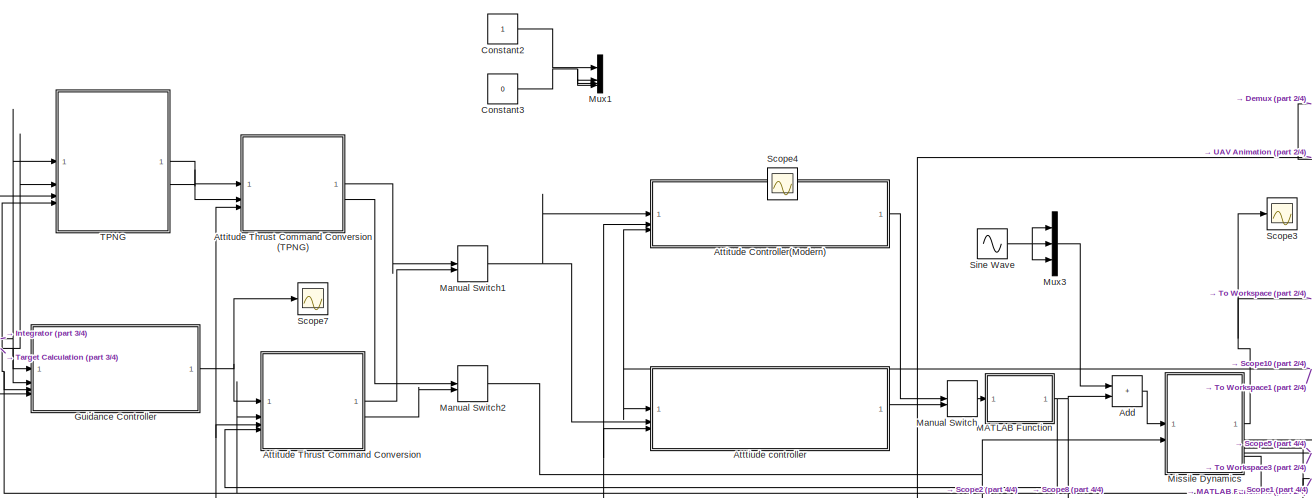
[diagram: root canvas - part 1/4, top center region]
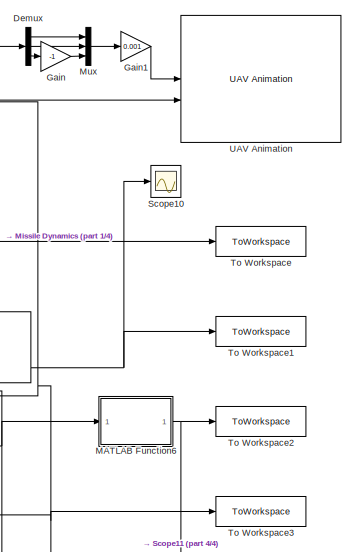
[diagram: root canvas - part 2/4, middle right region]
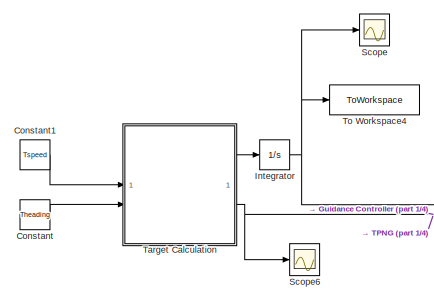
[diagram: root canvas - part 3/4, middle left region]
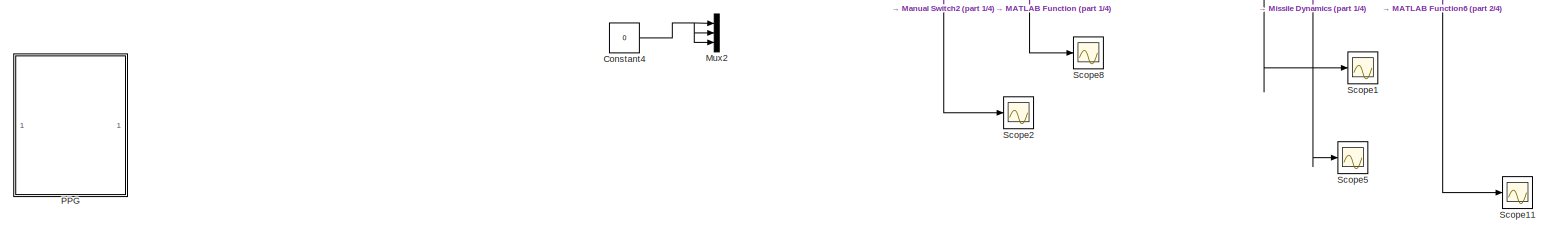
[diagram: root canvas - part 4/4, full width, bottom band]
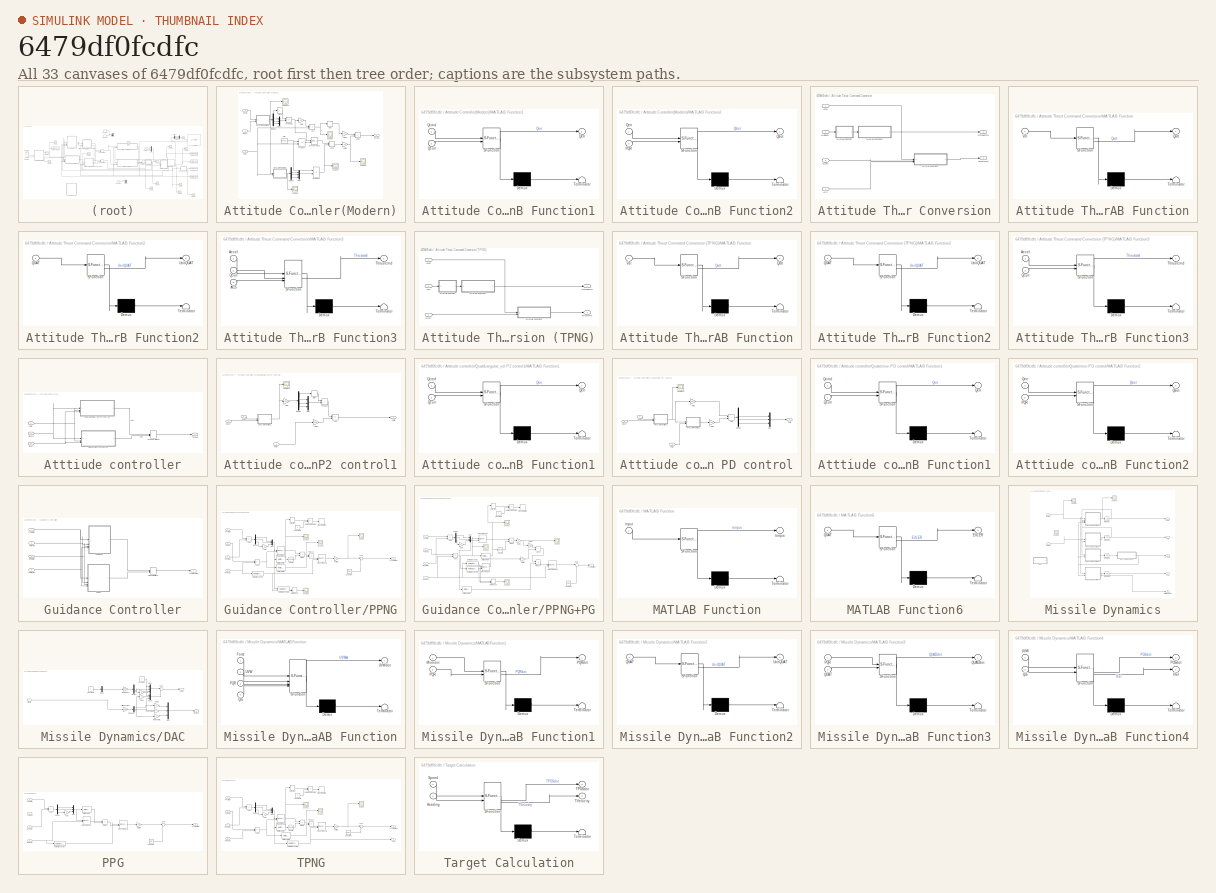
[diagram: thumbnail index - all 33 canvases of the model, root first then tree order]
MODEL slx_6479df0fcdfc
KIND model
CONFIG AbsTol = auto
CONFIG EnableMultiTasking = off
CONFIG FixedStep = auto
CONFIG InitFcn = DACSpara
CONFIG MaxStep = auto
CONFIG MinStep = auto
CONFIG RelTol = 1e-3
CONFIG SampleTimeConstraint = Unconstrained
CONFIG SolverName = VariableStepAuto
CONFIG StartTime = 0.0
CONFIG StopTime = 10
BLOCK [Sum] Add
  IconShape = rectangular
BLOCK [SubSystem] Attitude Controller(Modern)
BLOCK [Sum] Attitude Controller(Modern)/Add
  IconShape = rectangular
BLOCK [Sum] Attitude Controller(Modern)/Add1
  IconShape = rectangular
BLOCK [Sum] Attitude Controller(Modern)/Add2
  IconShape = rectangular
  Inputs = --
BLOCK [Reference] Attitude Controller(Modern)/Cross Product  REF=matrix_library/Cross Product
  LibrarySourceBlock = simulink/Matrix\nOperations/Cross Product
  SourceBlock = matrix_library/Cross Product
  SourceType = CrossProduct
BLOCK [Demux] Attitude Controller(Modern)/Demux
BLOCK [Demux] Attitude Controller(Modern)/Demux1
BLOCK [Gain] Attitude Controller(Modern)/Gain
  Gain = K1
BLOCK [Gain] Attitude Controller(Modern)/Gain1
  Gain = K2
BLOCK [Gain] Attitude Controller(Modern)/Gain2
  Gain = K1
BLOCK [SubSystem] Attitude Controller(Modern)/MATLAB Function1
  ErrorFcn = Stateflow.Translate.translate
  LibrarySourceBlock = simulink/User-Defined\nFunctions/MATLAB Function
  PermitHierarchicalResolution = ExplicitOnly
  SFBlockType = MATLAB Function
  TreatAsAtomicUnit = on
BLOCK [Demux] Attitude Controller(Modern)/MATLAB Function1/ Demux 
  Outputs = 1
BLOCK [S-Function] Attitude Controller(Modern)/MATLAB Function1/ SFunction 
  EnableBusSupport = on
  FunctionName = sf_sfun
  PortCounts = [2 2]
  SFcnIsStateOwnerBlock = off
  SFunctionDeploymentMode = off
  Tag = Stateflow S-Function 12
BLOCK [Terminator] Attitude Controller(Modern)/MATLAB Function1/ Terminator 
BLOCK [Inport] Attitude Controller(Modern)/MATLAB Function1/Qcmd
BLOCK [Inport] Attitude Controller(Modern)/MATLAB Function1/Qcurr
  Port = 2
BLOCK [Outport] Attitude Controller(Modern)/MATLAB Function1/Qerr
BLOCK [SubSystem] Attitude Controller(Modern)/MATLAB Function2
  ErrorFcn = Stateflow.Translate.translate
  LibrarySourceBlock = simulink/User-Defined\nFunctions/MATLAB Function
  PermitHierarchicalResolution = ExplicitOnly
  SFBlockType = MATLAB Function
  TreatAsAtomicUnit = on
BLOCK [Demux] Attitude Controller(Modern)/MATLAB Function2/ Demux 
  Outputs = 1
BLOCK [S-Function] Attitude Controller(Modern)/MATLAB Function2/ SFunction 
  EnableBusSupport = on
  FunctionName = sf_sfun
  PortCounts = [2 2]
  SFcnIsStateOwnerBlock = off
  SFunctionDeploymentMode = off
  Tag = Stateflow S-Function 14
BLOCK [Terminator] Attitude Controller(Modern)/MATLAB Function2/ Terminator 
BLOCK [Inport] Attitude Controller(Modern)/MATLAB Function2/PQR
  Port = 2
BLOCK [Outport] Attitude Controller(Modern)/MATLAB Function2/Qdot
BLOCK [Inport] Attitude Controller(Modern)/MATLAB Function2/Qerr
BLOCK [Constant] Attitude Controller(Modern)/MoI
  Value = [Ixx 0 0; 0 Iyy 0; 0 0 Izz]
BLOCK [Mux] Attitude Controller(Modern)/Mux
  DisplayOption = bar
  Inputs = 3
BLOCK [Mux] Attitude Controller(Modern)/Mux1
  DisplayOption = bar
  Inputs = 3
BLOCK [Inport] Attitude Controller(Modern)/PQR
  Port = 3
BLOCK [Product] Attitude Controller(Modern)/Product
  Multiplication = Matrix(*)
BLOCK [Product] Attitude Controller(Modern)/Product1
  Multiplication = Matrix(*)
BLOCK [Product] Attitude Controller(Modern)/Product2
BLOCK [Inport] Attitude Controller(Modern)/Qcmd
BLOCK [Inport] Attitude Controller(Modern)/Qcurr
  Port = 2
BLOCK [Scope] Attitude Controller(Modern)/Scope1
  Floating = off
  NumInputPorts = 1
  ScopeSpecificationString = Simulink.scopes.TimeScopeBlockCfg('CurrentConfiguration', extmgr.ConfigurationSet(extmgr.Configuration('Core','General UI',true),extmgr.Configuration('Core','Source UI',true),extmgr.Configuration('Sources','WiredSimulink',true,'DataLoggingVariableName','ScopeData2'),extmgr.Configuration('Visuals','Time Domain',true,'SerializedDisplays',{struct('MinYLimReal','-0.44317','MaxYLimReal','0.25456','YLab...<+1469ch>
BLOCK [Scope] Attitude Controller(Modern)/Scope11
  Floating = off
  NumInputPorts = 1
  ScopeSpecificationString = Simulink.scopes.TimeScopeBlockCfg('CurrentConfiguration', extmgr.ConfigurationSet(extmgr.Configuration('Core','General UI',true,'FigureColor',[0.941176470588235 0.941176470588235 0.941176470588235]),extmgr.Configuration('Core','Source UI',true),extmgr.Configuration('Sources','WiredSimulink',true,'DataLoggingVariableName','ScopeData2'),extmgr.Configuration('Visuals','Time Domain',true,'SerializedDi...<+2088ch>
BLOCK [Scope] Attitude Controller(Modern)/Scope2
  Floating = off
  NumInputPorts = 1
  ScopeSpecificationString = Simulink.scopes.TimeScopeBlockCfg('CurrentConfiguration', extmgr.ConfigurationSet(extmgr.Configuration('Core','General UI',true),extmgr.Configuration('Core','Source UI',true),extmgr.Configuration('Sources','WiredSimulink',true,'DataLoggingVariableName','ScopeData3'),extmgr.Configuration('Visuals','Time Domain',true,'SerializedDisplays',{struct('MinYLimReal','-48.70816','MaxYLimReal','105.74297','Y...<+1423ch>
BLOCK [Scope] Attitude Controller(Modern)/Scope3
  Floating = off
  NumInputPorts = 1
  ScopeSpecificationString = Simulink.scopes.TimeScopeBlockCfg('CurrentConfiguration', extmgr.ConfigurationSet(extmgr.Configuration('Core','General UI',true,'FigureColor',[0.941176470588235 0.941176470588235 0.941176470588235]),extmgr.Configuration('Core','Source UI',true),extmgr.Configuration('Sources','WiredSimulink',true,'DataLoggingVariableName','ScopeData3'),extmgr.Configuration('Visuals','Time Domain',true,'SerializedDi...<+1889ch>
BLOCK [Scope] Attitude Controller(Modern)/Scope4
  Floating = off
  NumInputPorts = 1
  ScopeSpecificationString = Simulink.scopes.TimeScopeBlockCfg('CurrentConfiguration', extmgr.ConfigurationSet(extmgr.Configuration('Core','General UI',true),extmgr.Configuration('Core','Source UI',true),extmgr.Configuration('Sources','WiredSimulink',true,'DataLoggingVariableName','ScopeData5'),extmgr.Configuration('Visuals','Time Domain',true,'SerializedDisplays',{struct('MinYLimReal','-8.30568','MaxYLimReal','17.8218','YLab...<+1422ch>
BLOCK [Signum] Attitude Controller(Modern)/Sign
  ZeroCross = off
BLOCK [Signum] Attitude Controller(Modern)/Sign1
  ZeroCross = off
BLOCK [Outport] Attitude Controller(Modern)/Torque
BLOCK [SubSystem] Attitude Thrust Command Conversion
BLOCK [SubSystem] Attitude Thrust Command Conversion (TPNG)
BLOCK [Inport] Attitude Thrust Command Conversion (TPNG)/Accel
BLOCK [Outport] Attitude Thrust Command Conversion (TPNG)/Attitudecmd
BLOCK [Inport] Attitude Thrust Command Conversion (TPNG)/LoS
  Port = 2
BLOCK [SubSystem] Attitude Thrust Command Conversion (TPNG)/MATLAB Function
  ErrorFcn = Stateflow.Translate.translate
  LibrarySourceBlock = simulink/User-Defined\nFunctions/MATLAB Function
  PermitHierarchicalResolution = ExplicitOnly
  SFBlockType = MATLAB Function
  TreatAsAtomicUnit = on
BLOCK [Demux] Attitude Thrust Command Conversion (TPNG)/MATLAB Function/ Demux 
  Outputs = 1
BLOCK [S-Function] Attitude Thrust Command Conversion (TPNG)/MATLAB Function/ SFunction 
  EnableBusSupport = on
  FunctionName = sf_sfun
  PortCounts = [1 2]
  SFcnIsStateOwnerBlock = off
  SFunctionDeploymentMode = off
  Tag = Stateflow S-Function 15
BLOCK [Terminator] Attitude Thrust Command Conversion (TPNG)/MATLAB Function/ Terminator 
BLOCK [Outport] Attitude Thrust Command Conversion (TPNG)/MATLAB Function/Qatt
BLOCK [Inport] Attitude Thrust Command Conversion (TPNG)/MATLAB Function/Vel
BLOCK [SubSystem] Attitude Thrust Command Conversion (TPNG)/MATLAB Function2
  ErrorFcn = Stateflow.Translate.translate
  LibrarySourceBlock = simulink/User-Defined\nFunctions/MATLAB Function
  PermitHierarchicalResolution = ExplicitOnly
  SFBlockType = MATLAB Function
  TreatAsAtomicUnit = on
BLOCK [Demux] Attitude Thrust Command Conversion (TPNG)/MATLAB Function2/ Demux 
  Outputs = 1
BLOCK [S-Function] Attitude Thrust Command Conversion (TPNG)/MATLAB Function2/ SFunction 
  EnableBusSupport = on
  FunctionName = sf_sfun
  PortCounts = [1 2]
  SFcnIsStateOwnerBlock = off
  SFunctionDeploymentMode = off
  Tag = Stateflow S-Function 16
BLOCK [Terminator] Attitude Thrust Command Conversion (TPNG)/MATLAB Function2/ Terminator 
BLOCK [Inport] Attitude Thrust Command Conversion (TPNG)/MATLAB Function2/QUAT
BLOCK [Outport] Attitude Thrust Command Conversion (TPNG)/MATLAB Function2/UnitQUAT
BLOCK [SubSystem] Attitude Thrust Command Conversion (TPNG)/MATLAB Function3
  ErrorFcn = Stateflow.Translate.translate
  LibrarySourceBlock = simulink/User-Defined\nFunctions/MATLAB Function
  PermitHierarchicalResolution = ExplicitOnly
  SFBlockType = MATLAB Function
  TreatAsAtomicUnit = on
BLOCK [Demux] Attitude Thrust Command Conversion (TPNG)/MATLAB Function3/ Demux 
  Outputs = 1
BLOCK [S-Function] Attitude Thrust Command Conversion (TPNG)/MATLAB Function3/ SFunction 
  EnableBusSupport = on
  FunctionName = sf_sfun
  Parameters = Dmax,M
  PortCounts = [2 2]
  SFcnIsStateOwnerBlock = off
  SFunctionDeploymentMode = off
  Tag = Stateflow S-Function 17
BLOCK [Terminator] Attitude Thrust Command Conversion (TPNG)/MATLAB Function3/ Terminator 
BLOCK [Inport] Attitude Thrust Command Conversion (TPNG)/MATLAB Function3/Accel
BLOCK [Inport] Attitude Thrust Command Conversion (TPNG)/MATLAB Function3/Qcurr
  Port = 2
BLOCK [Outport] Attitude Thrust Command Conversion (TPNG)/MATLAB Function3/Thrustcmd
BLOCK [Inport] Attitude Thrust Command Conversion (TPNG)/Qcurr
  Port = 3
BLOCK [Outport] Attitude Thrust Command Conversion (TPNG)/Thrustcmd
  Port = 2
BLOCK [Inport] Attitude Thrust Command Conversion/ACS
  Port = 4
BLOCK [Inport] Attitude Thrust Command Conversion/Accel
BLOCK [Outport] Attitude Thrust Command Conversion/Attitudecmd
BLOCK [SubSystem] Attitude Thrust Command Conversion/MATLAB Function
  ErrorFcn = Stateflow.Translate.translate
  LibrarySourceBlock = simulink/User-Defined\nFunctions/MATLAB Function
  PermitHierarchicalResolution = ExplicitOnly
  SFBlockType = MATLAB Function
  TreatAsAtomicUnit = on
BLOCK [Demux] Attitude Thrust Command Conversion/MATLAB Function/ Demux 
  Outputs = 1
BLOCK [S-Function] Attitude Thrust Command Conversion/MATLAB Function/ SFunction 
  EnableBusSupport = on
  FunctionName = sf_sfun
  PortCounts = [1 2]
  SFcnIsStateOwnerBlock = off
  SFunctionDeploymentMode = off
  Tag = Stateflow S-Function 11
BLOCK [Terminator] Attitude Thrust Command Conversion/MATLAB Function/ Terminator 
BLOCK [Outport] Attitude Thrust Command Conversion/MATLAB Function/Qatt
BLOCK [Inport] Attitude Thrust Command Conversion/MATLAB Function/Vel
BLOCK [SubSystem] Attitude Thrust Command Conversion/MATLAB Function2
  ErrorFcn = Stateflow.Translate.translate
  LibrarySourceBlock = simulink/User-Defined\nFunctions/MATLAB Function
  PermitHierarchicalResolution = ExplicitOnly
  SFBlockType = MATLAB Function
  TreatAsAtomicUnit = on
BLOCK [Demux] Attitude Thrust Command Conversion/MATLAB Function2/ Demux 
  Outputs = 1
BLOCK [S-Function] Attitude Thrust Command Conversion/MATLAB Function2/ SFunction 
  EnableBusSupport = on
  FunctionName = sf_sfun
  PortCounts = [1 2]
  SFcnIsStateOwnerBlock = off
  SFunctionDeploymentMode = off
  Tag = Stateflow S-Function 30
BLOCK [Terminator] Attitude Thrust Command Conversion/MATLAB Function2/ Terminator 
BLOCK [Inport] Attitude Thrust Command Conversion/MATLAB Function2/QUAT
BLOCK [Outport] Attitude Thrust Command Conversion/MATLAB Function2/UnitQUAT
BLOCK [SubSystem] Attitude Thrust Command Conversion/MATLAB Function3
  ErrorFcn = Stateflow.Translate.translate
  LibrarySourceBlock = simulink/User-Defined\nFunctions/MATLAB Function
  PermitHierarchicalResolution = ExplicitOnly
  SFBlockType = MATLAB Function
  TreatAsAtomicUnit = on
BLOCK [Demux] Attitude Thrust Command Conversion/MATLAB Function3/ Demux 
  Outputs = 1
BLOCK [S-Function] Attitude Thrust Command Conversion/MATLAB Function3/ SFunction 
  EnableBusSupport = on
  FunctionName = sf_sfun
  Parameters = Dmax,M,lx
  PortCounts = [3 2]
  SFcnIsStateOwnerBlock = off
  SFunctionDeploymentMode = off
  Tag = Stateflow S-Function 13
BLOCK [Terminator] Attitude Thrust Command Conversion/MATLAB Function3/ Terminator 
BLOCK [Inport] Attitude Thrust Command Conversion/MATLAB Function3/ACS
  Port = 3
BLOCK [Inport] Attitude Thrust Command Conversion/MATLAB Function3/Accel
BLOCK [Inport] Attitude Thrust Command Conversion/MATLAB Function3/Qcurr
  Port = 2
BLOCK [Outport] Attitude Thrust Command Conversion/MATLAB Function3/Thrustcmd
BLOCK [Inport] Attitude Thrust Command Conversion/MVelocity
  Port = 2
BLOCK [Inport] Attitude Thrust Command Conversion/Qcurr
  Port = 3
BLOCK [Outport] Attitude Thrust Command Conversion/Thrustcmd
  Port = 2
BLOCK [SubSystem] Atttiude controller
BLOCK [ManualSwitch] Atttiude controller/Manual Switch
BLOCK [Inport] Atttiude controller/PQR
BLOCK [Inport] Atttiude controller/Qcmd
  Port = 2
BLOCK [Inport] Atttiude controller/Qcurr
  NameLocation = top
  Port = 3
BLOCK [SubSystem] Atttiude controller/Quat&angular_vel P2 control1
BLOCK [Sum] Atttiude controller/Quat&angular_vel P2 control1/Add
  IconShape = rectangular
  Inputs = +-
BLOCK [Demux] Atttiude controller/Quat&angular_vel P2 control1/Demux
BLOCK [Gain] Atttiude controller/Quat&angular_vel P2 control1/Gain
  Gain = Kp1
BLOCK [Gain] Atttiude controller/Quat&angular_vel P2 control1/Gain1
  Gain = Kp2
BLOCK [SubSystem] Atttiude controller/Quat&angular_vel P2 control1/MATLAB Function1
  ErrorFcn = Stateflow.Translate.translate
  LibrarySourceBlock = simulink/User-Defined\nFunctions/MATLAB Function
  PermitHierarchicalResolution = ExplicitOnly
  SFBlockType = MATLAB Function
  TreatAsAtomicUnit = on
BLOCK [Demux] Atttiude controller/Quat&angular_vel P2 control1/MATLAB Function1/ Demux 
  Outputs = 1
BLOCK [S-Function] Atttiude controller/Quat&angular_vel P2 control1/MATLAB Function1/ SFunction 
  EnableBusSupport = on
  FunctionName = sf_sfun
  PortCounts = [2 2]
  SFcnIsStateOwnerBlock = off
  SFunctionDeploymentMode = off
  Tag = Stateflow S-Function 6
BLOCK [Terminator] Atttiude controller/Quat&angular_vel P2 control1/MATLAB Function1/ Terminator 
BLOCK [Inport] Atttiude controller/Quat&angular_vel P2 control1/MATLAB Function1/Qcmd
BLOCK [Inport] Atttiude controller/Quat&angular_vel P2 control1/MATLAB Function1/Qcurr
  Port = 2
BLOCK [Outport] Atttiude controller/Quat&angular_vel P2 control1/MATLAB Function1/Qerr
BLOCK [Mux] Atttiude controller/Quat&angular_vel P2 control1/Mux
  DisplayOption = bar
  Inputs = 3
BLOCK [Inport] Atttiude controller/Quat&angular_vel P2 control1/PQR
  Port = 2
BLOCK [Product] Atttiude controller/Quat&angular_vel P2 control1/Product
BLOCK [Inport] Atttiude controller/Quat&angular_vel P2 control1/Qcmd
BLOCK [Inport] Atttiude controller/Quat&angular_vel P2 control1/Qcurr
  NameLocation = top
  Port = 3
BLOCK [Scope] Atttiude controller/Quat&angular_vel P2 control1/Scope11
  Floating = off
  NumInputPorts = 1
  ScopeSpecificationString = Simulink.scopes.TimeScopeBlockCfg('CurrentConfiguration', extmgr.ConfigurationSet(extmgr.Configuration('Core','General UI',true,'FigureColor',[0.941176470588235 0.941176470588235 0.941176470588235]),extmgr.Configuration('Core','Source UI',true),extmgr.Configuration('Sources','WiredSimulink',true,'DataLoggingVariableName','ScopeData4'),extmgr.Configuration('Visuals','Time Domain',true,'SerializedDi...<+2088ch>
BLOCK [Signum] Atttiude controller/Quat&angular_vel P2 control1/Sign
BLOCK [Outport] Atttiude controller/Quat&angular_vel P2 control1/delta
BLOCK [SubSystem] Atttiude controller/Quaternion PD control
BLOCK [Sum] Atttiude controller/Quaternion PD control/Add
  IconShape = rectangular
BLOCK [Demux] Atttiude controller/Quaternion PD control/Demux
BLOCK [Gain] Atttiude controller/Quaternion PD control/Gain
  Gain = Kp
BLOCK [Gain] Atttiude controller/Quaternion PD control/Gain1
  Gain = Kd
BLOCK [SubSystem] Atttiude controller/Quaternion PD control/MATLAB Function1
  ErrorFcn = Stateflow.Translate.translate
  LibrarySourceBlock = simulink/User-Defined\nFunctions/MATLAB Function
  PermitHierarchicalResolution = ExplicitOnly
  SFBlockType = MATLAB Function
  TreatAsAtomicUnit = on
BLOCK [Demux] Atttiude controller/Quaternion PD control/MATLAB Function1/ Demux 
  Outputs = 1
BLOCK [S-Function] Atttiude controller/Quaternion PD control/MATLAB Function1/ SFunction 
  EnableBusSupport = on
  FunctionName = sf_sfun
  PortCounts = [2 2]
  SFcnIsStateOwnerBlock = off
  SFunctionDeploymentMode = off
  Tag = Stateflow S-Function 9
BLOCK [Terminator] Atttiude controller/Quaternion PD control/MATLAB Function1/ Terminator 
BLOCK [Inport] Atttiude controller/Quaternion PD control/MATLAB Function1/Qcmd
BLOCK [Inport] Atttiude controller/Quaternion PD control/MATLAB Function1/Qcurr
  Port = 2
BLOCK [Outport] Atttiude controller/Quaternion PD control/MATLAB Function1/Qerr
BLOCK [SubSystem] Atttiude controller/Quaternion PD control/MATLAB Function2
  ErrorFcn = Stateflow.Translate.translate
  LibrarySourceBlock = simulink/User-Defined\nFunctions/MATLAB Function
  PermitHierarchicalResolution = ExplicitOnly
  SFBlockType = MATLAB Function
  TreatAsAtomicUnit = on
BLOCK [Demux] Atttiude controller/Quaternion PD control/MATLAB Function2/ Demux 
  Outputs = 1
BLOCK [S-Function] Atttiude controller/Quaternion PD control/MATLAB Function2/ SFunction 
  EnableBusSupport = on
  FunctionName = sf_sfun
  PortCounts = [2 2]
  SFcnIsStateOwnerBlock = off
  SFunctionDeploymentMode = off
  Tag = Stateflow S-Function 10
BLOCK [Terminator] Atttiude controller/Quaternion PD control/MATLAB Function2/ Terminator 
BLOCK [Inport] Atttiude controller/Quaternion PD control/MATLAB Function2/PQR
  Port = 2
BLOCK [Outport] Atttiude controller/Quaternion PD control/MATLAB Function2/Qdot
BLOCK [Inport] Atttiude controller/Quaternion PD control/MATLAB Function2/Qerr
BLOCK [Mux] Atttiude controller/Quaternion PD control/Mux
  DisplayOption = bar
  Inputs = 3
BLOCK [Inport] Atttiude controller/Quaternion PD control/PQR
  Port = 2
BLOCK [Inport] Atttiude controller/Quaternion PD control/Qcmd
BLOCK [Inport] Atttiude controller/Quaternion PD control/Qcurr
  NameLocation = top
  Port = 3
BLOCK [Scope] Atttiude controller/Quaternion PD control/Scope11
  Floating = off
  NumInputPorts = 1
  ScopeSpecificationString = Simulink.scopes.TimeScopeBlockCfg('CurrentConfiguration', extmgr.ConfigurationSet(extmgr.Configuration('Core','General UI',true,'FigureColor',[0.941176470588235 0.941176470588235 0.941176470588235]),extmgr.Configuration('Core','Source UI',true),extmgr.Configuration('Sources','WiredSimulink',true,'DataLoggingVariableName','ScopeData5'),extmgr.Configuration('Visuals','Time Domain',true,'SerializedDi...<+1955ch>
BLOCK [Outport] Atttiude controller/Quaternion PD control/delta
BLOCK [Outport] Atttiude controller/Torque
BLOCK [Constant] Constant
  Value = Theading
BLOCK [Constant] Constant1
  Value = Tspeed
BLOCK [Constant] Constant2
BLOCK [Constant] Constant3
  Value = 0
BLOCK [Constant] Constant4
  Value = 0
BLOCK [Demux] Demux
  Outputs = 3
BLOCK [Gain] Gain
  Gain = -1
BLOCK [Gain] Gain1
  Gain = 0.001
BLOCK [SubSystem] Guidance Controller
BLOCK [Outport] Guidance Controller/Acceleration
BLOCK [Inport] Guidance Controller/MPosition
  NameLocation = top
  Port = 4
BLOCK [Inport] Guidance Controller/MVelocity
  NameLocation = top
  Port = 3
BLOCK [ManualSwitch] Guidance Controller/Manual Switch1
  CurrentSetting = 0
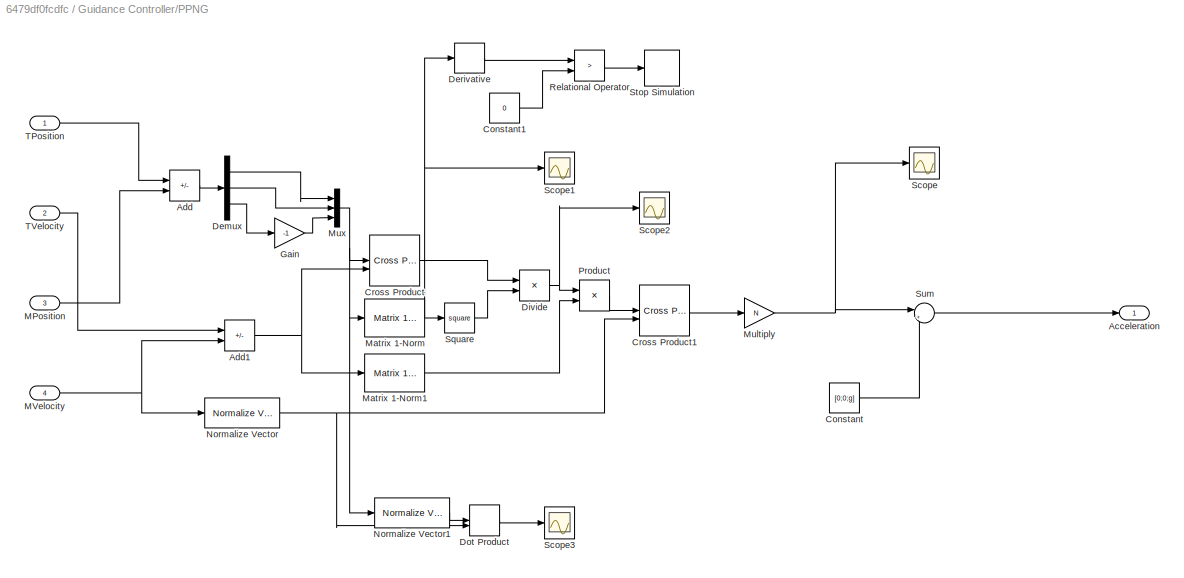
BLOCK [SubSystem] Guidance Controller/PPNG
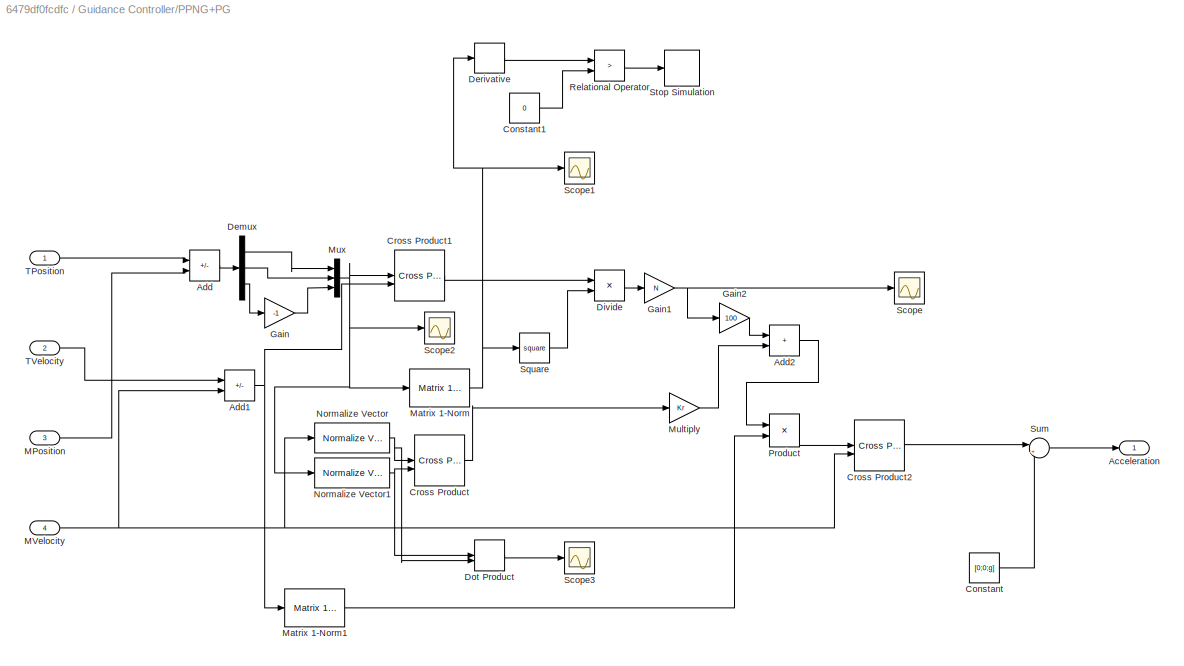
BLOCK [SubSystem] Guidance Controller/PPNG+PG
BLOCK [Outport] Guidance Controller/PPNG+PG/Acceleration
BLOCK [Sum] Guidance Controller/PPNG+PG/Add
  IconShape = rectangular
  Inputs = +-
BLOCK [Sum] Guidance Controller/PPNG+PG/Add1
  IconShape = rectangular
  Inputs = +-
BLOCK [Sum] Guidance Controller/PPNG+PG/Add2
  IconShape = rectangular
BLOCK [Constant] Guidance Controller/PPNG+PG/Constant
  Value = [0;0;g]
BLOCK [Constant] Guidance Controller/PPNG+PG/Constant1
  Value = 0
BLOCK [Reference] Guidance Controller/PPNG+PG/Cross Product  REF=matrix_library/Cross Product
  LibrarySourceBlock = simulink/Matrix\nOperations/Cross Product
  SourceBlock = matrix_library/Cross Product
  SourceType = CrossProduct
BLOCK [Reference] Guidance Controller/PPNG+PG/Cross Product1  REF=matrix_library/Cross Product
  LibrarySourceBlock = simulink/Matrix\nOperations/Cross Product
  SourceBlock = matrix_library/Cross Product
  SourceType = CrossProduct
BLOCK [Reference] Guidance Controller/PPNG+PG/Cross Product2  REF=matrix_library/Cross Product
  LibrarySourceBlock = simulink/Matrix\nOperations/Cross Product
  SourceBlock = matrix_library/Cross Product
  SourceType = CrossProduct
BLOCK [Demux] Guidance Controller/PPNG+PG/Demux
  Outputs = 3
BLOCK [Derivative] Guidance Controller/PPNG+PG/Derivative
BLOCK [Product] Guidance Controller/PPNG+PG/Divide
  Inputs = */
BLOCK [DotProduct] Guidance Controller/PPNG+PG/Dot Product
  OutDataTypeStr = Inherit: Inherit via internal rule
BLOCK [Gain] Guidance Controller/PPNG+PG/Gain
  Gain = -1
BLOCK [Gain] Guidance Controller/PPNG+PG/Gain1
  Gain = N
BLOCK [Gain] Guidance Controller/PPNG+PG/Gain2
  Gain = 100
BLOCK [Inport] Guidance Controller/PPNG+PG/MPosition
  Port = 3
BLOCK [Inport] Guidance Controller/PPNG+PG/MVelocity
  Port = 4
BLOCK [Reference] Guidance Controller/PPNG+PG/Matrix 1-Norm  REF=dspmtrx3/Matrix 
1-Norm
  SourceBlock = dspmtrx3/Matrix \n1-Norm
  SourceType = Matrix 1-Norm
BLOCK [Reference] Guidance Controller/PPNG+PG/Matrix 1-Norm1  REF=dspmtrx3/Matrix 
1-Norm
  SourceBlock = dspmtrx3/Matrix \n1-Norm
  SourceType = Matrix 1-Norm
BLOCK [Gain] Guidance Controller/PPNG+PG/Multiply
  Gain = Kr
BLOCK [Mux] Guidance Controller/PPNG+PG/Mux
  DisplayOption = bar
  Inputs = 3
BLOCK [Reference] Guidance Controller/PPNG+PG/Normalize Vector  REF=vrlib/Utilities/Normalize Vector
  SourceBlock = vrlib/Utilities/Normalize Vector
  SourceType = Normalize Vector
BLOCK [Reference] Guidance Controller/PPNG+PG/Normalize Vector1  REF=vrlib/Utilities/Normalize Vector
  SourceBlock = vrlib/Utilities/Normalize Vector
  SourceType = Normalize Vector
BLOCK [Product] Guidance Controller/PPNG+PG/Product
BLOCK [RelationalOperator] Guidance Controller/PPNG+PG/Relational Operator
  InputSameDT = off
  Operator = >
  OutDataTypeStr = boolean
  RndMeth = Simplest
BLOCK [Scope] Guidance Controller/PPNG+PG/Scope
  Floating = off
  NumInputPorts = 1
  ScopeSpecificationString = Simulink.scopes.TimeScopeBlockCfg('CurrentConfiguration', extmgr.ConfigurationSet(extmgr.Configuration('Core','General UI',true),extmgr.Configuration('Core','Source UI',true),extmgr.Configuration('Sources','WiredSimulink',true,'DataLoggingVariableName','ScopeData5'),extmgr.Configuration('Visuals','Time Domain',true,'SerializedDisplays',{struct('MinYLimReal','-119482801.3203','MaxYLimReal','3161681...<+1592ch>
BLOCK [Scope] Guidance Controller/PPNG+PG/Scope1
  Floating = off
  NumInputPorts = 1
  ScopeSpecificationString = Simulink.scopes.TimeScopeBlockCfg('CurrentConfiguration', extmgr.ConfigurationSet(extmgr.Configuration('Core','General UI',true),extmgr.Configuration('Core','Source UI',true),extmgr.Configuration('Sources','WiredSimulink',true,'DataLoggingVariableName','ScopeData6'),extmgr.Configuration('Visuals','Time Domain',true,'SerializedDisplays',{struct('MinYLimReal','-3743.29351','MaxYLimReal','33821.52739...<+1472ch>  <repeated x3 — deduplicated; at blocks: Scope1>
BLOCK [Scope] Guidance Controller/PPNG+PG/Scope2
  Floating = off
  NumInputPorts = 1
  ScopeSpecificationString = Simulink.scopes.TimeScopeBlockCfg('CurrentConfiguration', extmgr.ConfigurationSet(extmgr.Configuration('Core','General UI',true),extmgr.Configuration('Core','Source UI',true),extmgr.Configuration('Sources','WiredSimulink',true,'DataLoggingVariableName','ScopeData6'),extmgr.Configuration('Visuals','Time Domain',true,'SerializedDisplays',{struct('MinYLimReal','-10036.6285','MaxYLimReal','15329.65648...<+1441ch>
BLOCK [Scope] Guidance Controller/PPNG+PG/Scope3
  Floating = off
  NumInputPorts = 1
  ScopeSpecificationString = Simulink.scopes.TimeScopeBlockCfg('CurrentConfiguration', extmgr.ConfigurationSet(extmgr.Configuration('Core','General UI',true),extmgr.Configuration('Core','Source UI',true),extmgr.Configuration('Sources','WiredSimulink',true,'DataLoggingVariableName','ScopeData7'),extmgr.Configuration('Visuals','Time Domain',true,'SerializedDisplays',{struct('MinYLimReal','-1.09622','MaxYLimReal','1.15484','YLab...<+1399ch>
BLOCK [Math] Guidance Controller/PPNG+PG/Square
  Operator = square
BLOCK [Stop] Guidance Controller/PPNG+PG/Stop Simulation
BLOCK [Sum] Guidance Controller/PPNG+PG/Sum
  Inputs = |+-
BLOCK [Inport] Guidance Controller/PPNG+PG/TPosition
BLOCK [Inport] Guidance Controller/PPNG+PG/TVelocity
  Port = 2
BLOCK [Outport] Guidance Controller/PPNG/Acceleration
BLOCK [Sum] Guidance Controller/PPNG/Add
  IconShape = rectangular
  Inputs = +-
BLOCK [Sum] Guidance Controller/PPNG/Add1
  IconShape = rectangular
  Inputs = +-
BLOCK [Constant] Guidance Controller/PPNG/Constant
  Value = [0;0;g]
BLOCK [Constant] Guidance Controller/PPNG/Constant1
  Value = 0
BLOCK [Reference] Guidance Controller/PPNG/Cross Product  REF=matrix_library/Cross Product
  LibrarySourceBlock = simulink/Matrix\nOperations/Cross Product
  SourceBlock = matrix_library/Cross Product
  SourceType = CrossProduct
BLOCK [Reference] Guidance Controller/PPNG/Cross Product1  REF=matrix_library/Cross Product
  LibrarySourceBlock = simulink/Matrix\nOperations/Cross Product
  SourceBlock = matrix_library/Cross Product
  SourceType = CrossProduct
BLOCK [Demux] Guidance Controller/PPNG/Demux
  Outputs = 3
BLOCK [Derivative] Guidance Controller/PPNG/Derivative
BLOCK [Product] Guidance Controller/PPNG/Divide
  Inputs = */
BLOCK [DotProduct] Guidance Controller/PPNG/Dot Product
  OutDataTypeStr = Inherit: Inherit via internal rule
BLOCK [Gain] Guidance Controller/PPNG/Gain
  Gain = -1
BLOCK [Inport] Guidance Controller/PPNG/MPosition
  Port = 3
BLOCK [Inport] Guidance Controller/PPNG/MVelocity
  Port = 4
BLOCK [Reference] Guidance Controller/PPNG/Matrix 1-Norm  REF=dspmtrx3/Matrix 
1-Norm
  SourceBlock = dspmtrx3/Matrix \n1-Norm
  SourceType = Matrix 1-Norm
BLOCK [Reference] Guidance Controller/PPNG/Matrix 1-Norm1  REF=dspmtrx3/Matrix 
1-Norm
  SourceBlock = dspmtrx3/Matrix \n1-Norm
  SourceType = Matrix 1-Norm
BLOCK [Gain] Guidance Controller/PPNG/Multiply
  Gain = N
BLOCK [Mux] Guidance Controller/PPNG/Mux
  DisplayOption = bar
  Inputs = 3
BLOCK [Reference] Guidance Controller/PPNG/Normalize Vector  REF=vrlib/Utilities/Normalize Vector
  SourceBlock = vrlib/Utilities/Normalize Vector
  SourceType = Normalize Vector
BLOCK [Reference] Guidance Controller/PPNG/Normalize Vector1  REF=vrlib/Utilities/Normalize Vector
  SourceBlock = vrlib/Utilities/Normalize Vector
  SourceType = Normalize Vector
BLOCK [Product] Guidance Controller/PPNG/Product
BLOCK [RelationalOperator] Guidance Controller/PPNG/Relational Operator
  InputSameDT = off
  Operator = >
  OutDataTypeStr = boolean
  RndMeth = Simplest
BLOCK [Scope] Guidance Controller/PPNG/Scope
  Floating = off
  NumInputPorts = 1
  ScopeSpecificationString = Simulink.scopes.TimeScopeBlockCfg('CurrentConfiguration', extmgr.ConfigurationSet(extmgr.Configuration('Core','General UI',true),extmgr.Configuration('Core','Source UI',true),extmgr.Configuration('Sources','WiredSimulink',true,'DataLoggingVariableName','ScopeData5'),extmgr.Configuration('Visuals','Time Domain',true,'SerializedDisplays',{struct('MinYLimReal','-1377262499913.35889','MaxYLimReal','15...<+1514ch>
BLOCK [Scope] Guidance Controller/PPNG/Scope1
  Floating = off
  NumInputPorts = 1
BLOCK [Scope] Guidance Controller/PPNG/Scope2
  Floating = off
  NumInputPorts = 1
  ScopeSpecificationString = Simulink.scopes.TimeScopeBlockCfg('CurrentConfiguration', extmgr.ConfigurationSet(extmgr.Configuration('Core','General UI',true),extmgr.Configuration('Core','Source UI',true),extmgr.Configuration('Sources','WiredSimulink',true,'DataLoggingVariableName','ScopeData7'),extmgr.Configuration('Visuals','Time Domain',true,'SerializedDisplays',{struct('MinYLimReal','-23896560.26406','MaxYLimReal','6323363...<+1466ch>
BLOCK [Scope] Guidance Controller/PPNG/Scope3
  Floating = off
  NumInputPorts = 1
  ScopeSpecificationString = Simulink.scopes.TimeScopeBlockCfg('CurrentConfiguration', extmgr.ConfigurationSet(extmgr.Configuration('Core','General UI',true),extmgr.Configuration('Core','Source UI',true),extmgr.Configuration('Sources','WiredSimulink',true,'DataLoggingVariableName','ScopeData8'),extmgr.Configuration('Visuals','Time Domain',true,'SerializedDisplays',{struct('MinYLimReal','0.78874','MaxYLimReal','0.9975','YLabel...<+1413ch>
BLOCK [Math] Guidance Controller/PPNG/Square
  Operator = square
BLOCK [Stop] Guidance Controller/PPNG/Stop Simulation
BLOCK [Sum] Guidance Controller/PPNG/Sum
  Inputs = |+-
BLOCK [Inport] Guidance Controller/PPNG/TPosition
BLOCK [Inport] Guidance Controller/PPNG/TVelocity
  Port = 2
BLOCK [Inport] Guidance Controller/TPosition
BLOCK [Inport] Guidance Controller/TVelocity
  Port = 2
BLOCK [Integrator] Integrator
  InitialCondition = TPosition
BLOCK [SubSystem] MATLAB Function
  ErrorFcn = Stateflow.Translate.translate
  LibrarySourceBlock = simulink/User-Defined\nFunctions/MATLAB Function
  PermitHierarchicalResolution = ExplicitOnly
  SFBlockType = MATLAB Function
  TreatAsAtomicUnit = on
BLOCK [Demux] MATLAB Function/ Demux 
  Outputs = 1
BLOCK [S-Function] MATLAB Function/ SFunction 
  EnableBusSupport = on
  FunctionName = sf_sfun
  Parameters = Amax,lx,ly
  PortCounts = [1 2]
  SFcnIsStateOwnerBlock = off
  SFunctionDeploymentMode = off
  Tag = Stateflow S-Function 18
BLOCK [Terminator] MATLAB Function/ Terminator 
BLOCK [Inport] MATLAB Function/input
BLOCK [Outport] MATLAB Function/torque
BLOCK [SubSystem] MATLAB Function6
  ErrorFcn = Stateflow.Translate.translate
  LibrarySourceBlock = simulink/User-Defined\nFunctions/MATLAB Function
  PermitHierarchicalResolution = ExplicitOnly
  SFBlockType = MATLAB Function
  TreatAsAtomicUnit = on
BLOCK [Demux] MATLAB Function6/ Demux 
  Outputs = 1
BLOCK [S-Function] MATLAB Function6/ SFunction 
  EnableBusSupport = on
  FunctionName = sf_sfun
  PortCounts = [1 2]
  SFcnIsStateOwnerBlock = off
  SFunctionDeploymentMode = off
  Tag = Stateflow S-Function 7
BLOCK [Terminator] MATLAB Function6/ Terminator 
BLOCK [Outport] MATLAB Function6/EULER
BLOCK [Inport] MATLAB Function6/QUAT
BLOCK [ManualSwitch] Manual Switch
BLOCK [ManualSwitch] Manual Switch1
BLOCK [ManualSwitch] Manual Switch2
BLOCK [SubSystem] Missile Dynamics
  NameLocation = top
BLOCK [SubSystem] Missile Dynamics/DAC
BLOCK [Inport] Missile Dynamics/DAC/Attdelta
BLOCK [Gain] Missile Dynamics/DAC/Attitude Thrust
  Gain = Amax
BLOCK [Constant] Missile Dynamics/DAC/Constant
  Value = 0
BLOCK [Constant] Missile Dynamics/DAC/Constant1
BLOCK [Demux] Missile Dynamics/DAC/Demux
  Outputs = 3
BLOCK [Demux] Missile Dynamics/DAC/Demux2
  Outputs = 3
BLOCK [Gain] Missile Dynamics/DAC/Divert Thrust
  Gain = Dmax
BLOCK [Outport] Missile Dynamics/DAC/Force
BLOCK [Gain] Missile Dynamics/DAC/Gain
  Gain = -1
BLOCK [Gain] Missile Dynamics/DAC/Gain1
  Gain = -1
BLOCK [Gain] Missile Dynamics/DAC/Gain2
  Gain = ly
BLOCK [Outport] Missile Dynamics/DAC/Moment
  Port = 2
BLOCK [Mux] Missile Dynamics/DAC/Mux
  DisplayOption = bar
  Inputs = 3
BLOCK [Mux] Missile Dynamics/DAC/Mux1
  DisplayOption = bar
  Inputs = 3
BLOCK [Mux] Missile Dynamics/DAC/Mux2
  DisplayOption = bar
  Inputs = 3
BLOCK [Mux] Missile Dynamics/DAC/Mux3
  DisplayOption = bar
  Inputs = 3
BLOCK [Sum] Missile Dynamics/DAC/Sum
  Inputs = |++
BLOCK [Gain] Missile Dynamics/DAC/moment arm
  Gain = lx
BLOCK [Gain] Missile Dynamics/DAC/moment arm1
  Gain = lx
BLOCK [Outport] Missile Dynamics/EULER
  Port = 3
BLOCK [Inport] Missile Dynamics/Force
  Port = 2
BLOCK [Outport] Missile Dynamics/Inerttial Velocity
  Port = 5
BLOCK [Integrator] Missile Dynamics/Integrator
  InitialCondition = UVWinit
BLOCK [Integrator] Missile Dynamics/Integrator1
  InitialCondition = PQRinit
BLOCK [Integrator] Missile Dynamics/Integrator2
  InitialCondition = Quatinit
BLOCK [Integrator] Missile Dynamics/Integrator3
  InitialCondition = POSinit
BLOCK [SubSystem] Missile Dynamics/MATLAB Function
  ErrorFcn = Stateflow.Translate.translate
  PermitHierarchicalResolution = ExplicitOnly
  SFBlockType = MATLAB Function
  TreatAsAtomicUnit = on
BLOCK [Demux] Missile Dynamics/MATLAB Function/ Demux 
  Outputs = 1
BLOCK [S-Function] Missile Dynamics/MATLAB Function/ SFunction 
  EnableBusSupport = on
  FunctionName = sf_sfun
  Parameters = M
  PortCounts = [4 2]
  SFcnIsStateOwnerBlock = off
  SFunctionDeploymentMode = off
  Tag = Stateflow S-Function 2
BLOCK [Terminator] Missile Dynamics/MATLAB Function/ Terminator 
BLOCK [Inport] Missile Dynamics/MATLAB Function/Force
BLOCK [Inport] Missile Dynamics/MATLAB Function/PQR
  Port = 3
BLOCK [Inport] Missile Dynamics/MATLAB Function/Qib
  Port = 4
BLOCK [Inport] Missile Dynamics/MATLAB Function/UVW
  Port = 2
BLOCK [Outport] Missile Dynamics/MATLAB Function/UVWdot
  VectorParamsAs1DForOutWhenUnconnected = off
BLOCK [SubSystem] Missile Dynamics/MATLAB Function1
  ErrorFcn = Stateflow.Translate.translate
  LibrarySourceBlock = simulink/User-Defined\nFunctions/MATLAB Function
  PermitHierarchicalResolution = ExplicitOnly
  SFBlockType = MATLAB Function
  TreatAsAtomicUnit = on
BLOCK [Demux] Missile Dynamics/MATLAB Function1/ Demux 
  Outputs = 1
BLOCK [S-Function] Missile Dynamics/MATLAB Function1/ SFunction 
  EnableBusSupport = on
  FunctionName = sf_sfun
  Parameters = Ixx,Iyy,Izz
  PortCounts = [2 2]
  SFcnIsStateOwnerBlock = off
  SFunctionDeploymentMode = off
  Tag = Stateflow S-Function 1
BLOCK [Terminator] Missile Dynamics/MATLAB Function1/ Terminator 
BLOCK [Inport] Missile Dynamics/MATLAB Function1/Moment
BLOCK [Inport] Missile Dynamics/MATLAB Function1/PQR
  Port = 2
BLOCK [Outport] Missile Dynamics/MATLAB Function1/PQRdot
BLOCK [SubSystem] Missile Dynamics/MATLAB Function2
  ErrorFcn = Stateflow.Translate.translate
  LibrarySourceBlock = simulink/User-Defined\nFunctions/MATLAB Function
  PermitHierarchicalResolution = ExplicitOnly
  SFBlockType = MATLAB Function
  TreatAsAtomicUnit = on
BLOCK [Demux] Missile Dynamics/MATLAB Function2/ Demux 
  Outputs = 1
BLOCK [S-Function] Missile Dynamics/MATLAB Function2/ SFunction 
  EnableBusSupport = on
  FunctionName = sf_sfun
  PortCounts = [1 2]
  SFcnIsStateOwnerBlock = off
  SFunctionDeploymentMode = off
  Tag = Stateflow S-Function 5
BLOCK [Terminator] Missile Dynamics/MATLAB Function2/ Terminator 
BLOCK [Inport] Missile Dynamics/MATLAB Function2/QUAT
BLOCK [Outport] Missile Dynamics/MATLAB Function2/UnitQUAT
BLOCK [SubSystem] Missile Dynamics/MATLAB Function3
  ErrorFcn = Stateflow.Translate.translate
  PermitHierarchicalResolution = ExplicitOnly
  SFBlockType = MATLAB Function
  TreatAsAtomicUnit = on
BLOCK [Demux] Missile Dynamics/MATLAB Function3/ Demux 
  Outputs = 1
BLOCK [S-Function] Missile Dynamics/MATLAB Function3/ SFunction 
  EnableBusSupport = on
  FunctionName = sf_sfun
  PortCounts = [2 2]
  SFcnIsStateOwnerBlock = off
  SFunctionDeploymentMode = off
  Tag = Stateflow S-Function 3
BLOCK [Terminator] Missile Dynamics/MATLAB Function3/ Terminator 
BLOCK [Inport] Missile Dynamics/MATLAB Function3/PQR
BLOCK [Outport] Missile Dynamics/MATLAB Function3/QUADdot
  VectorParamsAs1DForOutWhenUnconnected = off
BLOCK [Inport] Missile Dynamics/MATLAB Function3/QUAT
  Port = 2
BLOCK [SubSystem] Missile Dynamics/MATLAB Function4
  ErrorFcn = Stateflow.Translate.translate
  PermitHierarchicalResolution = ExplicitOnly
  SFBlockType = MATLAB Function
  TreatAsAtomicUnit = on
BLOCK [Demux] Missile Dynamics/MATLAB Function4/ Demux 
  Outputs = 1
BLOCK [S-Function] Missile Dynamics/MATLAB Function4/ SFunction 
  EnableBusSupport = on
  FunctionName = sf_sfun
  PortCounts = [2 3]
  SFcnIsStateOwnerBlock = off
  SFunctionDeploymentMode = off
  Tag = Stateflow S-Function 4
BLOCK [Terminator] Missile Dynamics/MATLAB Function4/ Terminator 
BLOCK [Outport] Missile Dynamics/MATLAB Function4/IVel
  Port = 2
BLOCK [Outport] Missile Dynamics/MATLAB Function4/POSdot
  VectorParamsAs1DForOutWhenUnconnected = off
BLOCK [Inport] Missile Dynamics/MATLAB Function4/Qib
  Port = 2
BLOCK [Inport] Missile Dynamics/MATLAB Function4/UVW
BLOCK [Outport] Missile Dynamics/PQR
  Port = 2
BLOCK [Scope] Missile Dynamics/Scope
  Floating = off
  NumInputPorts = 1
  ScopeSpecificationString = Simulink.scopes.TimeScopeBlockCfg('CurrentConfiguration', extmgr.ConfigurationSet(extmgr.Configuration('Core','General UI',true),extmgr.Configuration('Core','Source UI',true),extmgr.Configuration('Sources','WiredSimulink',true,'DataLoggingVariableName','ScopeData4'),extmgr.Configuration('Visuals','Time Domain',true,'SerializedDisplays',{struct('MinYLimReal','-6768.875','MaxYLimReal','6768.87496','...<+1464ch>
BLOCK [Scope] Missile Dynamics/Scope1
  Floating = off
  NumInputPorts = 1
  ScopeSpecificationString = Simulink.scopes.TimeScopeBlockCfg('CurrentConfiguration', extmgr.ConfigurationSet(extmgr.Configuration('Core','General UI',true),extmgr.Configuration('Core','Source UI',true),extmgr.Configuration('Sources','WiredSimulink',true,'DataLoggingVariableName','ScopeData7'),extmgr.Configuration('Visuals','Time Domain',true,'SerializedDisplays',{struct('MinYLimReal','-519.34759','MaxYLimReal','793.72779','...<+1400ch>
BLOCK [Scope] Missile Dynamics/Scope3
  Floating = off
  NumInputPorts = 1
  ScopeSpecificationString = Simulink.scopes.TimeScopeBlockCfg('CurrentConfiguration', extmgr.ConfigurationSet(extmgr.Configuration('Core','General UI',true),extmgr.Configuration('Core','Source UI',true),extmgr.Configuration('Sources','WiredSimulink',true,'DataLoggingVariableName','ScopeData9'),extmgr.Configuration('Visuals','Time Domain',true,'SerializedDisplays',{struct('MinYLimReal','-83.3866','MaxYLimReal','104.98964','YL...<+1451ch>
BLOCK [Inport] Missile Dynamics/Torque
BLOCK [Outport] Missile Dynamics/UVW
BLOCK [Outport] Missile Dynamics/XYH
  Port = 4
BLOCK [Mux] Mux
  DisplayOption = bar
  Inputs = 3
BLOCK [Mux] Mux1
  DisplayOption = bar
BLOCK [Mux] Mux2
  DisplayOption = bar
  Inputs = 3
BLOCK [Mux] Mux3
  DisplayOption = bar
  Inputs = 3
BLOCK [SubSystem] PPG
BLOCK [Outport] PPG/Acceleration
BLOCK [Sum] PPG/Add
  IconShape = rectangular
  Inputs = +-
BLOCK [Constant] PPG/Constant
  Value = [0;0;g]
BLOCK [Reference] PPG/Cross Product  REF=matrix_library/Cross Product
  LibrarySourceBlock = simulink/Matrix\nOperations/Cross Product
  SourceBlock = matrix_library/Cross Product
  SourceType = CrossProduct
BLOCK [Reference] PPG/Cross Product1  REF=matrix_library/Cross Product
  LibrarySourceBlock = simulink/Matrix\nOperations/Cross Product
  SourceBlock = matrix_library/Cross Product
  SourceType = CrossProduct
BLOCK [Demux] PPG/Demux
  Outputs = 3
BLOCK [Product] PPG/Divide
  Inputs = */
BLOCK [Gain] PPG/Gain
  Gain = -1
BLOCK [Inport] PPG/MPosition
  Port = 3
BLOCK [Inport] PPG/MVelocity
  Port = 4
BLOCK [Reference] PPG/Matrix 1-Norm  REF=dspmtrx3/Matrix 
1-Norm
  SourceBlock = dspmtrx3/Matrix \n1-Norm
  SourceType = Matrix 1-Norm
BLOCK [Gain] PPG/Multiply
  Gain = 20
BLOCK [Mux] PPG/Mux
  DisplayOption = bar
  Inputs = 3
BLOCK [Reference] PPG/Normalize Vector  REF=vrlib/Utilities/Normalize Vector
  SourceBlock = vrlib/Utilities/Normalize Vector
  SourceType = Normalize Vector
BLOCK [Sum] PPG/Sum
  Inputs = |+-
BLOCK [Inport] PPG/TPosition
BLOCK [Inport] PPG/TVelocity
  Port = 2
BLOCK [Scope] Scope
  Floating = off
  NumInputPorts = 1
  ScopeSpecificationString = Simulink.scopes.TimeScopeBlockCfg('CurrentConfiguration', extmgr.ConfigurationSet(extmgr.Configuration('Core','General UI',true),extmgr.Configuration('Core','Source UI',true),extmgr.Configuration('Sources','WiredSimulink',true,'DataLoggingVariableName','ScopeData1'),extmgr.Configuration('Visuals','Time Domain',true,'SerializedDisplays',{struct('MinYLimReal','615.59797','MaxYLimReal','14146.07576',...<+1450ch>
BLOCK [Scope] Scope1
  Floating = off
  NumInputPorts = 1
  ScopeSpecificationString = Simulink.scopes.TimeScopeBlockCfg('CurrentConfiguration', extmgr.ConfigurationSet(extmgr.Configuration('Core','General UI',true),extmgr.Configuration('Core','Source UI',true),extmgr.Configuration('Sources','WiredSimulink',true,'DataLoggingVariableName','ScopeData2'),extmgr.Configuration('Visuals','Time Domain',true,'SerializedDisplays',{struct('MinYLimReal','-0.18802','MaxYLimReal','1.13199','YLab...<+1504ch>
BLOCK [Scope] Scope10
  Floating = off
  NumInputPorts = 1
  ScopeSpecificationString = Simulink.scopes.TimeScopeBlockCfg('CurrentConfiguration', extmgr.ConfigurationSet(extmgr.Configuration('Core','General UI',true,'FigureColor',[0.941176470588235 0.941176470588235 0.941176470588235]),extmgr.Configuration('Core','Source UI',true),extmgr.Configuration('Sources','WiredSimulink',true,'DataLoggingVariableName','ScopeData10'),extmgr.Configuration('Visuals','Time Domain',true,'SerializedD...<+1872ch>
BLOCK [Scope] Scope11
  Floating = off
  NumInputPorts = 1
  ScopeSpecificationString = Simulink.scopes.TimeScopeBlockCfg('CurrentConfiguration', extmgr.ConfigurationSet(extmgr.Configuration('Core','General UI',true,'FigureColor',[0.941176470588235 0.941176470588235 0.941176470588235]),extmgr.Configuration('Core','Source UI',true),extmgr.Configuration('Sources','WiredSimulink',true,'DataLoggingVariableName','ScopeData1'),extmgr.Configuration('Visuals','Time Domain',true,'SerializedDi...<+1928ch>
BLOCK [Scope] Scope2
  Floating = off
  NumInputPorts = 1
  ScopeSpecificationString = Simulink.scopes.TimeScopeBlockCfg('CurrentConfiguration', extmgr.ConfigurationSet(extmgr.Configuration('Core','General UI',true),extmgr.Configuration('Core','Source UI',true),extmgr.Configuration('Sources','WiredSimulink',true,'DataLoggingVariableName','ScopeData1'),extmgr.Configuration('Visuals','Time Domain',true,'SerializedDisplays',{struct('MinYLimReal','-1.00000','MaxYLimReal','1.00000','YLab...<+1426ch>
BLOCK [Scope] Scope3
  Floating = off
  NumInputPorts = 1
  ScopeSpecificationString = Simulink.scopes.TimeScopeBlockCfg('CurrentConfiguration', extmgr.ConfigurationSet(extmgr.Configuration('Core','General UI',true),extmgr.Configuration('Core','Source UI',true),extmgr.Configuration('Sources','WiredSimulink',true,'DataLoggingVariableName','ScopeData5'),extmgr.Configuration('Visuals','Time Domain',true,'SerializedDisplays',{struct('MinYLimReal','-663.11968','MaxYLimReal','1184.79108',...<+1470ch>
BLOCK [Scope] Scope4
  Floating = off
  IOType = viewer
  NumInputPorts = 1
  ScopeSpecificationString = Simulink.scopes.TimeScopeBlockCfg('CurrentConfiguration', extmgr.ConfigurationSet(extmgr.Configuration('Core','General UI',true),extmgr.Configuration('Core','Source UI',true),extmgr.Configuration('Sources','WiredSimulink',true,'DataLoggingVariableName','ScopeData4'),extmgr.Configuration('Visuals','Time Domain',true,'SerializedDisplays',{struct('MinYLimReal','-26.09943','MaxYLimReal','26.04912','YL...<+1394ch>
BLOCK [Scope] Scope5
  Floating = off
  NumInputPorts = 1
  ScopeSpecificationString = Simulink.scopes.TimeScopeBlockCfg('CurrentConfiguration', extmgr.ConfigurationSet(extmgr.Configuration('Core','General UI',true),extmgr.Configuration('Core','Source UI',true),extmgr.Configuration('Sources','WiredSimulink',true,'DataLoggingVariableName','ScopeData6'),extmgr.Configuration('Visuals','Time Domain',true,'SerializedDisplays',{struct('MinYLimReal','-401.55517','MaxYLimReal','3613.99657',...<+1470ch>
BLOCK [Scope] Scope6
  Floating = off
  NumInputPorts = 1
  ScopeSpecificationString = Simulink.scopes.TimeScopeBlockCfg('CurrentConfiguration', extmgr.ConfigurationSet(extmgr.Configuration('Core','General UI',true),extmgr.Configuration('Core','Source UI',true),extmgr.Configuration('Sources','WiredSimulink',true,'DataLoggingVariableName','ScopeData2'),extmgr.Configuration('Visuals','Time Domain',true,'SerializedDisplays',{struct('MinYLimReal','-2591.94645','MaxYLimReal','1676.88294'...<+1504ch>
BLOCK [Scope] Scope7
  Floating = off
  NumInputPorts = 1
  ScopeSpecificationString = Simulink.scopes.TimeScopeBlockCfg('CurrentConfiguration', extmgr.ConfigurationSet(extmgr.Configuration('Core','General UI',true),extmgr.Configuration('Core','Source UI',true),extmgr.Configuration('Sources','WiredSimulink',true,'DataLoggingVariableName','ScopeData3'),extmgr.Configuration('Visuals','Time Domain',true,'SerializedDisplays',{struct('MinYLimReal','-1377262499922.87866','MaxYLimReal','15...<+1547ch>
BLOCK [Scope] Scope8
  Floating = off
  NumInputPorts = 1
  ScopeSpecificationString = Simulink.scopes.TimeScopeBlockCfg('CurrentConfiguration', extmgr.ConfigurationSet(extmgr.Configuration('Core','General UI',true),extmgr.Configuration('Core','Source UI',true),extmgr.Configuration('Sources','WiredSimulink',true,'DataLoggingVariableName','ScopeData2'),extmgr.Configuration('Visuals','Time Domain',true,'SerializedDisplays',{struct('MinYLimReal','-174.67595','MaxYLimReal','55.97956','Y...<+1483ch>
BLOCK [Sin] Sine Wave
  Amplitude = 20
  SampleTime = 0
BLOCK [SubSystem] TPNG
BLOCK [Outport] TPNG/Acceleration
BLOCK [Sum] TPNG/Add
  IconShape = rectangular
  Inputs = +-
BLOCK [Sum] TPNG/Add1
  IconShape = rectangular
  Inputs = +-
BLOCK [Constant] TPNG/Constant
  Value = [0;0;g]
BLOCK [Constant] TPNG/Constant1
  Value = 0
BLOCK [Reference] TPNG/Cross Product  REF=matrix_library/Cross Product
  LibrarySourceBlock = simulink/Matrix\nOperations/Cross Product
  SourceBlock = matrix_library/Cross Product
  SourceType = CrossProduct
BLOCK [Reference] TPNG/Cross Product1  REF=matrix_library/Cross Product
  LibrarySourceBlock = simulink/Matrix\nOperations/Cross Product
  SourceBlock = matrix_library/Cross Product
  SourceType = CrossProduct
BLOCK [Demux] TPNG/Demux
  Outputs = 3
BLOCK [Derivative] TPNG/Derivative
BLOCK [Product] TPNG/Divide
  Inputs = */
BLOCK [Gain] TPNG/Gain
  Gain = -1
BLOCK [Outport] TPNG/LoS
  Port = 2
BLOCK [Inport] TPNG/MPosition
  Port = 3
BLOCK [Inport] TPNG/MVelocity
  Port = 4
BLOCK [Reference] TPNG/Matrix 1-Norm  REF=dspmtrx3/Matrix 
1-Norm
  SourceBlock = dspmtrx3/Matrix \n1-Norm
  SourceType = Matrix 1-Norm
BLOCK [Reference] TPNG/Matrix 1-Norm1  REF=dspmtrx3/Matrix 
1-Norm
  SourceBlock = dspmtrx3/Matrix \n1-Norm
  SourceType = Matrix 1-Norm
BLOCK [Gain] TPNG/Multiply
  Gain = Nt
BLOCK [Mux] TPNG/Mux
  DisplayOption = bar
  Inputs = 3
BLOCK [Reference] TPNG/Normalize Vector1  REF=vrlib/Utilities/Normalize Vector
  SourceBlock = vrlib/Utilities/Normalize Vector
  SourceType = Normalize Vector
BLOCK [Product] TPNG/Product
BLOCK [RelationalOperator] TPNG/Relational Operator
  InputSameDT = off
  Operator = >
  OutDataTypeStr = boolean
  RndMeth = Simplest
BLOCK [Scope] TPNG/Scope
  Floating = off
  NumInputPorts = 1
  ScopeSpecificationString = Simulink.scopes.TimeScopeBlockCfg('CurrentConfiguration', extmgr.ConfigurationSet(extmgr.Configuration('Core','General UI',true),extmgr.Configuration('Core','Source UI',true),extmgr.Configuration('Sources','WiredSimulink',true,'DataLoggingVariableName','ScopeData5'),extmgr.Configuration('Visuals','Time Domain',true,'SerializedDisplays',{struct('MinYLimReal','-3286.68973','MaxYLimReal','2209.38041'...<+1444ch>
BLOCK [Scope] TPNG/Scope1
  Floating = off
  NumInputPorts = 1
BLOCK [Scope] TPNG/Scope2
  Floating = off
  NumInputPorts = 1
  ScopeSpecificationString = Simulink.scopes.TimeScopeBlockCfg('CurrentConfiguration', extmgr.ConfigurationSet(extmgr.Configuration('Core','General UI',true),extmgr.Configuration('Core','Source UI',true),extmgr.Configuration('Sources','WiredSimulink',true,'DataLoggingVariableName','ScopeData7'),extmgr.Configuration('Visuals','Time Domain',true,'SerializedDisplays',{struct('MinYLimReal','-0.12772','MaxYLimReal','0.0172','YLabe...<+1414ch>
BLOCK [Math] TPNG/Square
  Operator = square
BLOCK [Stop] TPNG/Stop Simulation
BLOCK [Sum] TPNG/Sum
  Inputs = |+-
BLOCK [Inport] TPNG/TPosition
BLOCK [Inport] TPNG/TVelocity
  Port = 2
BLOCK [SubSystem] Target Calculation
  ErrorFcn = Stateflow.Translate.translate
  LibrarySourceBlock = simulink/User-Defined\nFunctions/MATLAB Function
  PermitHierarchicalResolution = ExplicitOnly
  SFBlockType = MATLAB Function
  TreatAsAtomicUnit = on
BLOCK [Demux] Target Calculation/ Demux 
  Outputs = 1
BLOCK [S-Function] Target Calculation/ SFunction 
  EnableBusSupport = on
  FunctionName = sf_sfun
  PortCounts = [2 3]
  SFcnIsStateOwnerBlock = off
  SFunctionDeploymentMode = off
  Tag = Stateflow S-Function 8
BLOCK [Terminator] Target Calculation/ Terminator 
BLOCK [Inport] Target Calculation/Heading
  Port = 2
BLOCK [Inport] Target Calculation/Speed
BLOCK [Outport] Target Calculation/TPOSdot
BLOCK [Outport] Target Calculation/TVelocity
  Port = 2
BLOCK [ToWorkspace] To Workspace
  FixptAsFi = on
  MaxDataPoints = inf
  SampleTime = -1
  SaveFormat = Timeseries
  VariableName = UVW
BLOCK [ToWorkspace] To Workspace1
  FixptAsFi = on
  MaxDataPoints = inf
  SampleTime = -1
  SaveFormat = Timeseries
  VariableName = PQR
BLOCK [ToWorkspace] To Workspace2
  FixptAsFi = on
  MaxDataPoints = inf
  SampleTime = -1
  SaveFormat = Timeseries
  VariableName = EULER
BLOCK [ToWorkspace] To Workspace3
  FixptAsFi = on
  MaxDataPoints = inf
  SampleTime = -1
  SaveFormat = Timeseries
  VariableName = POSITION
BLOCK [ToWorkspace] To Workspace4
  FixptAsFi = on
  MaxDataPoints = inf
  SampleTime = -1
  SaveFormat = Timeseries
  VariableName = TPOS
BLOCK [Reference] UAV Animation  REF=uavutilslib/UAV Animation
  SourceBlock = uavutilslib/UAV Animation
  SourceType = uav.sluav.internal.system.UAVAnimation
LINE Add:1 -> Missile Dynamics:1
LINE Attitude Controller(Modern)/Add1:1 -> Attitude Controller(Modern)/Gain2:1
LINE Attitude Controller(Modern)/Add2:1 -> Attitude Controller(Modern)/Torque:1
NET Attitude Controller(Modern)/Add:1 -> Attitude Controller(Modern)/Scope3:1, Attitude Controller(Modern)/Sign:1
LINE Attitude Controller(Modern)/Cross Product:1 -> Attitude Controller(Modern)/Add1:1
LINE Attitude Controller(Modern)/Demux1:1 -> Attitude Controller(Modern)/Sign1:1
LINE Attitude Controller(Modern)/Demux1:2 -> Attitude Controller(Modern)/Mux1:1
LINE Attitude Controller(Modern)/Demux1:3 -> Attitude Controller(Modern)/Mux1:2
LINE Attitude Controller(Modern)/Demux1:4 -> Attitude Controller(Modern)/Mux1:3
LINE Attitude Controller(Modern)/Demux:2 -> Attitude Controller(Modern)/Mux:1
LINE Attitude Controller(Modern)/Demux:3 -> Attitude Controller(Modern)/Mux:2
LINE Attitude Controller(Modern)/Demux:4 -> Attitude Controller(Modern)/Mux:3
LINE Attitude Controller(Modern)/Gain1:1 -> Attitude Controller(Modern)/Add2:1
NET Attitude Controller(Modern)/Gain2:1 -> Attitude Controller(Modern)/Add2:2, Attitude Controller(Modern)/Scope2:1
LINE Attitude Controller(Modern)/Gain:1 -> Attitude Controller(Modern)/Add:1
NET Attitude Controller(Modern)/MATLAB Function1:1 -> Attitude Controller(Modern)/Demux1:1, Attitude Controller(Modern)/MATLAB Function2:1, Attitude Controller(Modern)/Scope11:1
NET Attitude Controller(Modern)/MATLAB Function2:1 -> Attitude Controller(Modern)/Demux:1, Attitude Controller(Modern)/Scope1:1
NET Attitude Controller(Modern)/MoI:1 -> Attitude Controller(Modern)/Product1:1, Attitude Controller(Modern)/Product:1
LINE Attitude Controller(Modern)/Mux1:1 -> Attitude Controller(Modern)/Product2:2
LINE Attitude Controller(Modern)/Mux:1 -> Attitude Controller(Modern)/Product1:2
NET Attitude Controller(Modern)/PQR:1 -> Attitude Controller(Modern)/Add:2, Attitude Controller(Modern)/MATLAB Function2:2, Attitude Controller(Modern)/Product:2
NET Attitude Controller(Modern)/Product1:1 -> Attitude Controller(Modern)/Add1:2, Attitude Controller(Modern)/Scope4:1
NET Attitude Controller(Modern)/Product2:1 -> Attitude Controller(Modern)/Cross Product:1, Attitude Controller(Modern)/Gain:1
LINE Attitude Controller(Modern)/Product:1 -> Attitude Controller(Modern)/Cross Product:2
LINE Attitude Controller(Modern)/Qcmd:1 -> Attitude Controller(Modern)/MATLAB Function1:1
LINE Attitude Controller(Modern)/Qcurr:1 -> Attitude Controller(Modern)/MATLAB Function1:2
LINE Attitude Controller(Modern)/Sign1:1 -> Attitude Controller(Modern)/Product2:1
LINE Attitude Controller(Modern)/Sign:1 -> Attitude Controller(Modern)/Gain1:1
LINE Attitude Controller(Modern):1 -> Manual Switch:1
LINE Attitude Thrust Command Conversion (TPNG)/Accel:1 -> Attitude Thrust Command Conversion (TPNG)/MATLAB Function3:1
LINE Attitude Thrust Command Conversion (TPNG)/LoS:1 -> Attitude Thrust Command Conversion (TPNG)/MATLAB Function:1
LINE Attitude Thrust Command Conversion (TPNG)/MATLAB Function2:1 -> Attitude Thrust Command Conversion (TPNG)/Attitudecmd:1
LINE Attitude Thrust Command Conversion (TPNG)/MATLAB Function3:1 -> Attitude Thrust Command Conversion (TPNG)/Thrustcmd:1
LINE Attitude Thrust Command Conversion (TPNG)/MATLAB Function:1 -> Attitude Thrust Command Conversion (TPNG)/MATLAB Function2:1
LINE Attitude Thrust Command Conversion (TPNG)/Qcurr:1 -> Attitude Thrust Command Conversion (TPNG)/MATLAB Function3:2
LINE Attitude Thrust Command Conversion (TPNG):1 -> Manual Switch1:1
LINE Attitude Thrust Command Conversion (TPNG):2 -> Manual Switch2:1
LINE Attitude Thrust Command Conversion/ACS:1 -> Attitude Thrust Command Conversion/MATLAB Function3:3
LINE Attitude Thrust Command Conversion/Accel:1 -> Attitude Thrust Command Conversion/MATLAB Function3:1
LINE Attitude Thrust Command Conversion/MATLAB Function2:1 -> Attitude Thrust Command Conversion/Attitudecmd:1
LINE Attitude Thrust Command Conversion/MATLAB Function3:1 -> Attitude Thrust Command Conversion/Thrustcmd:1
LINE Attitude Thrust Command Conversion/MATLAB Function:1 -> Attitude Thrust Command Conversion/MATLAB Function2:1
LINE Attitude Thrust Command Conversion/MVelocity:1 -> Attitude Thrust Command Conversion/MATLAB Function:1
LINE Attitude Thrust Command Conversion/Qcurr:1 -> Attitude Thrust Command Conversion/MATLAB Function3:2
LINE Attitude Thrust Command Conversion:1 -> Manual Switch1:2
LINE Attitude Thrust Command Conversion:2 -> Manual Switch2:2
LINE Atttiude controller/Manual Switch:1 -> Atttiude controller/Torque:1
NET Atttiude controller/PQR:1 -> Atttiude controller/Quat&angular_vel P2 control1:2, Atttiude controller/Quaternion PD control:2
NET Atttiude controller/Qcmd:1 -> Atttiude controller/Quat&angular_vel P2 control1:1, Atttiude controller/Quaternion PD control:1
NET Atttiude controller/Qcurr:1 -> Atttiude controller/Quat&angular_vel P2 control1:3, Atttiude controller/Quaternion PD control:3
LINE Atttiude controller/Quat&angular_vel P2 control1/Add:1 -> Atttiude controller/Quat&angular_vel P2 control1/delta:1
LINE Atttiude controller/Quat&angular_vel P2 control1/Demux:1 -> Atttiude controller/Quat&angular_vel P2 control1/Sign:1
LINE Atttiude controller/Quat&angular_vel P2 control1/Demux:2 -> Atttiude controller/Quat&angular_vel P2 control1/Mux:1
LINE Atttiude controller/Quat&angular_vel P2 control1/Demux:3 -> Atttiude controller/Quat&angular_vel P2 control1/Mux:2
LINE Atttiude controller/Quat&angular_vel P2 control1/Demux:4 -> Atttiude controller/Quat&angular_vel P2 control1/Mux:3
LINE Atttiude controller/Quat&angular_vel P2 control1/Gain1:1 -> Atttiude controller/Quat&angular_vel P2 control1/Add:2
LINE Atttiude controller/Quat&angular_vel P2 control1/Gain:1 -> Atttiude controller/Quat&angular_vel P2 control1/Demux:1
NET Atttiude controller/Quat&angular_vel P2 control1/MATLAB Function1:1 -> Atttiude controller/Quat&angular_vel P2 control1/Gain:1, Atttiude controller/Quat&angular_vel P2 control1/Scope11:1
LINE Atttiude controller/Quat&angular_vel P2 control1/Mux:1 -> Atttiude controller/Quat&angular_vel P2 control1/Product:2
LINE Atttiude controller/Quat&angular_vel P2 control1/PQR:1 -> Atttiude controller/Quat&angular_vel P2 control1/Gain1:1
LINE Atttiude controller/Quat&angular_vel P2 control1/Product:1 -> Atttiude controller/Quat&angular_vel P2 control1/Add:1
LINE Atttiude controller/Quat&angular_vel P2 control1/Qcmd:1 -> Atttiude controller/Quat&angular_vel P2 control1/MATLAB Function1:1
LINE Atttiude controller/Quat&angular_vel P2 control1/Qcurr:1 -> Atttiude controller/Quat&angular_vel P2 control1/MATLAB Function1:2
LINE Atttiude controller/Quat&angular_vel P2 control1/Sign:1 -> Atttiude controller/Quat&angular_vel P2 control1/Product:1
LINE Atttiude controller/Quat&angular_vel P2 control1:1 -> Atttiude controller/Manual Switch:1
LINE Atttiude controller/Quaternion PD control/Add:1 -> Atttiude controller/Quaternion PD control/Demux:1
LINE Atttiude controller/Quaternion PD control/Demux:2 -> Atttiude controller/Quaternion PD control/Mux:1
LINE Atttiude controller/Quaternion PD control/Demux:3 -> Atttiude controller/Quaternion PD control/Mux:2
LINE Atttiude controller/Quaternion PD control/Demux:4 -> Atttiude controller/Quaternion PD control/Mux:3
LINE Atttiude controller/Quaternion PD control/Gain1:1 -> Atttiude controller/Quaternion PD control/Add:2
LINE Atttiude controller/Quaternion PD control/Gain:1 -> Atttiude controller/Quaternion PD control/Add:1
NET Atttiude controller/Quaternion PD control/MATLAB Function1:1 -> Atttiude controller/Quaternion PD control/Gain:1, Atttiude controller/Quaternion PD control/MATLAB Function2:1, Atttiude controller/Quaternion PD control/Scope11:1
LINE Atttiude controller/Quaternion PD control/MATLAB Function2:1 -> Atttiude controller/Quaternion PD control/Gain1:1
LINE Atttiude controller/Quaternion PD control/Mux:1 -> Atttiude controller/Quaternion PD control/delta:1
LINE Atttiude controller/Quaternion PD control/PQR:1 -> Atttiude controller/Quaternion PD control/MATLAB Function2:2
LINE Atttiude controller/Quaternion PD control/Qcmd:1 -> Atttiude controller/Quaternion PD control/MATLAB Function1:1
LINE Atttiude controller/Quaternion PD control/Qcurr:1 -> Atttiude controller/Quaternion PD control/MATLAB Function1:2
LINE Atttiude controller/Quaternion PD control:1 -> Atttiude controller/Manual Switch:2
LINE Atttiude controller:1 -> Manual Switch:2
LINE Constant1:1 -> Target Calculation:1
LINE Constant2:1 -> Mux1:1
NET Constant3:1 -> Mux1:2, Mux1:3, Mux1:4
NET Constant4:1 -> Mux2:1, Mux2:2, Mux2:3
LINE Constant:1 -> Target Calculation:2
LINE Demux:1 -> Mux:1
LINE Demux:2 -> Mux:2
LINE Demux:3 -> Gain:1
LINE Gain1:1 -> UAV Animation:1
LINE Gain:1 -> Mux:3
NET Guidance Controller/MPosition:1 -> Guidance Controller/PPNG+PG:3, Guidance Controller/PPNG:3
NET Guidance Controller/MVelocity:1 -> Guidance Controller/PPNG+PG:4, Guidance Controller/PPNG:4
LINE Guidance Controller/Manual Switch1:1 -> Guidance Controller/Acceleration:1
NET Guidance Controller/PPNG+PG/Add1:1 -> Guidance Controller/PPNG+PG/Cross Product1:2, Guidance Controller/PPNG+PG/Matrix 1-Norm1:1
LINE Guidance Controller/PPNG+PG/Add2:1 -> Guidance Controller/PPNG+PG/Product:1
LINE Guidance Controller/PPNG+PG/Add:1 -> Guidance Controller/PPNG+PG/Demux:1
LINE Guidance Controller/PPNG+PG/Constant1:1 -> Guidance Controller/PPNG+PG/Relational Operator:2
LINE Guidance Controller/PPNG+PG/Constant:1 -> Guidance Controller/PPNG+PG/Sum:2
LINE Guidance Controller/PPNG+PG/Cross Product1:1 -> Guidance Controller/PPNG+PG/Divide:1
LINE Guidance Controller/PPNG+PG/Cross Product2:1 -> Guidance Controller/PPNG+PG/Sum:1
LINE Guidance Controller/PPNG+PG/Cross Product:1 -> Guidance Controller/PPNG+PG/Multiply:1
LINE Guidance Controller/PPNG+PG/Demux:1 -> Guidance Controller/PPNG+PG/Mux:1
LINE Guidance Controller/PPNG+PG/Demux:2 -> Guidance Controller/PPNG+PG/Mux:2
LINE Guidance Controller/PPNG+PG/Demux:3 -> Guidance Controller/PPNG+PG/Gain:1
LINE Guidance Controller/PPNG+PG/Derivative:1 -> Guidance Controller/PPNG+PG/Relational Operator:1
LINE Guidance Controller/PPNG+PG/Divide:1 -> Guidance Controller/PPNG+PG/Gain1:1
LINE Guidance Controller/PPNG+PG/Dot Product:1 -> Guidance Controller/PPNG+PG/Scope3:1
NET Guidance Controller/PPNG+PG/Gain1:1 -> Guidance Controller/PPNG+PG/Gain2:1, Guidance Controller/PPNG+PG/Scope:1
LINE Guidance Controller/PPNG+PG/Gain2:1 -> Guidance Controller/PPNG+PG/Add2:1
LINE Guidance Controller/PPNG+PG/Gain:1 -> Guidance Controller/PPNG+PG/Mux:3
LINE Guidance Controller/PPNG+PG/MPosition:1 -> Guidance Controller/PPNG+PG/Add:2
NET Guidance Controller/PPNG+PG/MVelocity:1 -> Guidance Controller/PPNG+PG/Add1:2, Guidance Controller/PPNG+PG/Cross Product2:2, Guidance Controller/PPNG+PG/Normalize Vector:1
LINE Guidance Controller/PPNG+PG/Matrix 1-Norm1:1 -> Guidance Controller/PPNG+PG/Product:2
NET Guidance Controller/PPNG+PG/Matrix 1-Norm:1 -> Guidance Controller/PPNG+PG/Derivative:1, Guidance Controller/PPNG+PG/Scope1:1, Guidance Controller/PPNG+PG/Square:1
LINE Guidance Controller/PPNG+PG/Multiply:1 -> Guidance Controller/PPNG+PG/Add2:2
NET Guidance Controller/PPNG+PG/Mux:1 -> Guidance Controller/PPNG+PG/Cross Product1:1, Guidance Controller/PPNG+PG/Matrix 1-Norm:1, Guidance Controller/PPNG+PG/Normalize Vector1:1, Guidance Controller/PPNG+PG/Scope2:1
NET Guidance Controller/PPNG+PG/Normalize Vector1:1 -> Guidance Controller/PPNG+PG/Cross Product:2, Guidance Controller/PPNG+PG/Dot Product:1
NET Guidance Controller/PPNG+PG/Normalize Vector:1 -> Guidance Controller/PPNG+PG/Cross Product:1, Guidance Controller/PPNG+PG/Dot Product:2
LINE Guidance Controller/PPNG+PG/Product:1 -> Guidance Controller/PPNG+PG/Cross Product2:1
LINE Guidance Controller/PPNG+PG/Relational Operator:1 -> Guidance Controller/PPNG+PG/Stop Simulation:1
LINE Guidance Controller/PPNG+PG/Square:1 -> Guidance Controller/PPNG+PG/Divide:2
LINE Guidance Controller/PPNG+PG/Sum:1 -> Guidance Controller/PPNG+PG/Acceleration:1
LINE Guidance Controller/PPNG+PG/TPosition:1 -> Guidance Controller/PPNG+PG/Add:1
LINE Guidance Controller/PPNG+PG/TVelocity:1 -> Guidance Controller/PPNG+PG/Add1:1
LINE Guidance Controller/PPNG+PG:1 -> Guidance Controller/Manual Switch1:1
NET Guidance Controller/PPNG/Add1:1 -> Guidance Controller/PPNG/Cross Product:2, Guidance Controller/PPNG/Matrix 1-Norm1:1
LINE Guidance Controller/PPNG/Add:1 -> Guidance Controller/PPNG/Demux:1
LINE Guidance Controller/PPNG/Constant1:1 -> Guidance Controller/PPNG/Relational Operator:2
LINE Guidance Controller/PPNG/Constant:1 -> Guidance Controller/PPNG/Sum:2
LINE Guidance Controller/PPNG/Cross Product1:1 -> Guidance Controller/PPNG/Multiply:1
LINE Guidance Controller/PPNG/Cross Product:1 -> Guidance Controller/PPNG/Divide:1
LINE Guidance Controller/PPNG/Demux:1 -> Guidance Controller/PPNG/Mux:1
LINE Guidance Controller/PPNG/Demux:2 -> Guidance Controller/PPNG/Mux:2
LINE Guidance Controller/PPNG/Demux:3 -> Guidance Controller/PPNG/Gain:1
LINE Guidance Controller/PPNG/Derivative:1 -> Guidance Controller/PPNG/Relational Operator:1
NET Guidance Controller/PPNG/Divide:1 -> Guidance Controller/PPNG/Product:1, Guidance Controller/PPNG/Scope2:1
LINE Guidance Controller/PPNG/Dot Product:1 -> Guidance Controller/PPNG/Scope3:1
LINE Guidance Controller/PPNG/Gain:1 -> Guidance Controller/PPNG/Mux:3
LINE Guidance Controller/PPNG/MPosition:1 -> Guidance Controller/PPNG/Add:2
NET Guidance Controller/PPNG/MVelocity:1 -> Guidance Controller/PPNG/Add1:2, Guidance Controller/PPNG/Normalize Vector:1
LINE Guidance Controller/PPNG/Matrix 1-Norm1:1 -> Guidance Controller/PPNG/Product:2
NET Guidance Controller/PPNG/Matrix 1-Norm:1 -> Guidance Controller/PPNG/Derivative:1, Guidance Controller/PPNG/Scope1:1, Guidance Controller/PPNG/Square:1
NET Guidance Controller/PPNG/Multiply:1 -> Guidance Controller/PPNG/Scope:1, Guidance Controller/PPNG/Sum:1
NET Guidance Controller/PPNG/Mux:1 -> Guidance Controller/PPNG/Cross Product:1, Guidance Controller/PPNG/Matrix 1-Norm:1, Guidance Controller/PPNG/Normalize Vector1:1
LINE Guidance Controller/PPNG/Normalize Vector1:1 -> Guidance Controller/PPNG/Dot Product:1
NET Guidance Controller/PPNG/Normalize Vector:1 -> Guidance Controller/PPNG/Cross Product1:2, Guidance Controller/PPNG/Dot Product:2
LINE Guidance Controller/PPNG/Product:1 -> Guidance Controller/PPNG/Cross Product1:1
LINE Guidance Controller/PPNG/Relational Operator:1 -> Guidance Controller/PPNG/Stop Simulation:1
LINE Guidance Controller/PPNG/Square:1 -> Guidance Controller/PPNG/Divide:2
LINE Guidance Controller/PPNG/Sum:1 -> Guidance Controller/PPNG/Acceleration:1
LINE Guidance Controller/PPNG/TPosition:1 -> Guidance Controller/PPNG/Add:1
LINE Guidance Controller/PPNG/TVelocity:1 -> Guidance Controller/PPNG/Add1:1
LINE Guidance Controller/PPNG:1 -> Guidance Controller/Manual Switch1:2
NET Guidance Controller/TPosition:1 -> Guidance Controller/PPNG+PG:1, Guidance Controller/PPNG:1
NET Guidance Controller/TVelocity:1 -> Guidance Controller/PPNG+PG:2, Guidance Controller/PPNG:2
NET Guidance Controller:1 -> Attitude Thrust Command Conversion:1, Scope7:1
NET Integrator:1 -> Guidance Controller:1, Scope:1, TPNG:1, To Workspace4:1
NET MATLAB Function6:1 -> Scope11:1, To Workspace2:1
NET MATLAB Function:1 -> Add:2, Attitude Thrust Command Conversion:4, Scope8:1
NET Manual Switch1:1 -> Attitude Controller(Modern):1, Atttiude controller:2
NET Manual Switch2:1 -> Missile Dynamics:2, Scope2:1
LINE Manual Switch:1 -> MATLAB Function:1
LINE Missile Dynamics/DAC/Attdelta:1 -> Missile Dynamics/DAC/Attitude Thrust:1
LINE Missile Dynamics/DAC/Attitude Thrust:1 -> Missile Dynamics/DAC/Demux2:1
LINE Missile Dynamics/DAC/Constant1:1 -> Missile Dynamics/DAC/Mux3:2
NET Missile Dynamics/DAC/Constant:1 -> Missile Dynamics/DAC/Mux1:1, Missile Dynamics/DAC/Mux2:1
LINE Missile Dynamics/DAC/Demux2:1 -> Missile Dynamics/DAC/Gain2:1
NET Missile Dynamics/DAC/Demux2:2 -> Missile Dynamics/DAC/Mux2:3, Missile Dynamics/DAC/moment arm1:1
NET Missile Dynamics/DAC/Demux2:3 -> Missile Dynamics/DAC/Gain1:1, Missile Dynamics/DAC/moment arm:1
LINE Missile Dynamics/DAC/Demux:2 -> Missile Dynamics/DAC/Gain:1
LINE Missile Dynamics/DAC/Demux:3 -> Missile Dynamics/DAC/Mux1:2
LINE Missile Dynamics/DAC/Divert Thrust:1 -> Missile Dynamics/DAC/Demux:1
LINE Missile Dynamics/DAC/Gain1:1 -> Missile Dynamics/DAC/Mux2:2
LINE Missile Dynamics/DAC/Gain2:1 -> Missile Dynamics/DAC/Mux:1
LINE Missile Dynamics/DAC/Gain:1 -> Missile Dynamics/DAC/Mux1:3
LINE Missile Dynamics/DAC/Mux1:1 -> Missile Dynamics/DAC/Sum:1
LINE Missile Dynamics/DAC/Mux2:1 -> Missile Dynamics/DAC/Sum:2
LINE Missile Dynamics/DAC/Mux3:1 -> Missile Dynamics/DAC/Divert Thrust:1
LINE Missile Dynamics/DAC/Mux:1 -> Missile Dynamics/DAC/Moment:1
LINE Missile Dynamics/DAC/Sum:1 -> Missile Dynamics/DAC/Force:1
LINE Missile Dynamics/DAC/moment arm1:1 -> Missile Dynamics/DAC/Mux:2
LINE Missile Dynamics/DAC/moment arm:1 -> Missile Dynamics/DAC/Mux:3
NET Missile Dynamics/Force:1 -> Missile Dynamics/MATLAB Function:1, Missile Dynamics/Scope:1
NET Missile Dynamics/Integrator1:1 -> Missile Dynamics/MATLAB Function1:2, Missile Dynamics/MATLAB Function3:1, Missile Dynamics/MATLAB Function:3, Missile Dynamics/PQR:1
LINE Missile Dynamics/Integrator2:1 -> Missile Dynamics/MATLAB Function2:1
LINE Missile Dynamics/Integrator3:1 -> Missile Dynamics/XYH:1
NET Missile Dynamics/Integrator:1 -> Missile Dynamics/MATLAB Function4:1, Missile Dynamics/MATLAB Function:2, Missile Dynamics/UVW:1
LINE Missile Dynamics/MATLAB Function1:1 -> Missile Dynamics/Integrator1:1
NET Missile Dynamics/MATLAB Function2:1 -> Missile Dynamics/EULER:1, Missile Dynamics/MATLAB Function3:2, Missile Dynamics/MATLAB Function4:2, Missile Dynamics/MATLAB Function:4
LINE Missile Dynamics/MATLAB Function3:1 -> Missile Dynamics/Integrator2:1
LINE Missile Dynamics/MATLAB Function4:1 -> Missile Dynamics/Integrator3:1
LINE Missile Dynamics/MATLAB Function4:2 -> Missile Dynamics/Inerttial Velocity:1
NET Missile Dynamics/MATLAB Function:1 -> Missile Dynamics/Integrator:1, Missile Dynamics/Scope3:1
LINE Missile Dynamics/Torque:1 -> Missile Dynamics/MATLAB Function1:1
NET Missile Dynamics:1 -> Scope3:1, To Workspace:1
NET Missile Dynamics:2 -> Attitude Controller(Modern):3, Atttiude controller:1, Scope10:1, To Workspace1:1
NET Missile Dynamics:3 -> Attitude Controller(Modern):2, Attitude Thrust Command Conversion (TPNG):3, Attitude Thrust Command Conversion:3, Atttiude controller:3, MATLAB Function6:1, Scope1:1, UAV Animation:2
NET Missile Dynamics:4 -> Demux:1, Guidance Controller:4, Scope5:1, TPNG:3, To Workspace3:1
NET Missile Dynamics:5 -> Attitude Thrust Command Conversion:2, Guidance Controller:3, TPNG:4
LINE Mux3:1 -> Add:1
LINE Mux:1 -> Gain1:1
LINE PPG/Add:1 -> PPG/Demux:1
LINE PPG/Constant:1 -> PPG/Sum:2
LINE PPG/Cross Product1:1 -> PPG/Multiply:1
LINE PPG/Cross Product:1 -> PPG/Divide:1
LINE PPG/Demux:1 -> PPG/Mux:1
LINE PPG/Demux:2 -> PPG/Mux:2
LINE PPG/Demux:3 -> PPG/Gain:1
LINE PPG/Divide:1 -> PPG/Cross Product1:2
LINE PPG/Gain:1 -> PPG/Mux:3
LINE PPG/MPosition:1 -> PPG/Add:2
NET PPG/MVelocity:1 -> PPG/Cross Product:2, PPG/Normalize Vector:1
LINE PPG/Matrix 1-Norm:1 -> PPG/Divide:2
LINE PPG/Multiply:1 -> PPG/Sum:1
NET PPG/Mux:1 -> PPG/Cross Product:1, PPG/Matrix 1-Norm:1
LINE PPG/Normalize Vector:1 -> PPG/Cross Product1:1
LINE PPG/Sum:1 -> PPG/Acceleration:1
LINE PPG/TPosition:1 -> PPG/Add:1
NET Sine Wave:1 -> Mux3:1, Mux3:2, Mux3:3
NET TPNG/Add1:1 -> TPNG/Cross Product:2, TPNG/Matrix 1-Norm1:1
LINE TPNG/Add:1 -> TPNG/Demux:1
LINE TPNG/Constant1:1 -> TPNG/Relational Operator:2
LINE TPNG/Constant:1 -> TPNG/Sum:2
LINE TPNG/Cross Product1:1 -> TPNG/Multiply:1
LINE TPNG/Cross Product:1 -> TPNG/Divide:1
LINE TPNG/Demux:1 -> TPNG/Mux:1
LINE TPNG/Demux:2 -> TPNG/Mux:2
LINE TPNG/Demux:3 -> TPNG/Gain:1
LINE TPNG/Derivative:1 -> TPNG/Relational Operator:1
NET TPNG/Divide:1 -> TPNG/Product:1, TPNG/Scope2:1
LINE TPNG/Gain:1 -> TPNG/Mux:3
LINE TPNG/MPosition:1 -> TPNG/Add:2
LINE TPNG/MVelocity:1 -> TPNG/Add1:2
LINE TPNG/Matrix 1-Norm1:1 -> TPNG/Product:2
NET TPNG/Matrix 1-Norm:1 -> TPNG/Derivative:1, TPNG/Scope1:1, TPNG/Square:1
NET TPNG/Multiply:1 -> TPNG/Scope:1, TPNG/Sum:1
NET TPNG/Mux:1 -> TPNG/Cross Product:1, TPNG/Matrix 1-Norm:1, TPNG/Normalize Vector1:1
NET TPNG/Normalize Vector1:1 -> TPNG/Cross Product1:2, TPNG/LoS:1
LINE TPNG/Product:1 -> TPNG/Cross Product1:1
LINE TPNG/Relational Operator:1 -> TPNG/Stop Simulation:1
LINE TPNG/Square:1 -> TPNG/Divide:2
LINE TPNG/Sum:1 -> TPNG/Acceleration:1
LINE TPNG/TPosition:1 -> TPNG/Add:1
LINE TPNG/TVelocity:1 -> TPNG/Add1:1
LINE TPNG:1 -> Attitude Thrust Command Conversion (TPNG):1
LINE TPNG:2 -> Attitude Thrust Command Conversion (TPNG):2
LINE Target Calculation:1 -> Integrator:1
NET Target Calculation:2 -> Guidance Controller:2, Scope6:1, TPNG:2
note: NET lines group one-source signal fan-out (src -> all destinations, sorted); 1:1 wires keep LINE
CHART Attitude Thrust 
Command Conversion/MATLAB Function states=1 transitions=1
  STATE_LABEL 'eML_blk_kernel()'
  STATE_LABEL 'SCRIPT:\nfunction Qatt = fcn(Vel)\n\nif (nnz(Vel./norm(Vel) == -[1;0;0]) == 3)\n    Qatt = [0;0;1;0];\n    return\nend\n\ntemp = cross([1;0;0],Vel);\nq0 = norm(Vel)+dot(Vel,[1;0;0]);\n\nQatt = [q0;temp(1);temp(2);temp(3)];\nend\n\n'
CHART Attitude Controller(Modern)/MATLAB Function1 states=1 transitions=1
  STATE_LABEL 'eML_blk_kernel()'
  STATE_LABEL 'SCRIPT:\nfunction Qerr = ErrorQ(Qcmd, Qcurr)\n\nqx = Quatinv(Qcurr);\n\nQerr = Quatmul(qx, Qcmd);\nend'
CHART Attitude Thrust 
Command Conversion/MATLAB Function3 states=1 transitions=1
  STATE_LABEL 'eML_blk_kernel()'
  STATE_LABEL 'SCRIPT:\nfunction Thrustcmd   = Projection(Accel, Qcurr, ACS, Dmax, M, lx)\n\ntemp = Quatmul(Quatmul(Quatinv(Qcurr),Accel),Qcurr);\nThrustcmd = M.*[0;temp(3);temp(4)]+[0; ACS(2); ACS(3)]./lx;\nif (norm(Thrustcmd) > Dmax)\n    Thrustcmd = Dmax*Thrustcmd./norm(Thrustcmd);\nend\n'
CHART Attitude Controller(Modern)/MATLAB Function2 states=1 transitions=1
  STATE_LABEL 'eML_blk_kernel()'
  STATE_LABEL 'SCRIPT:\nfunction Qdot = DeriveQ(Qerr, PQR)\n\np = PQR(1);\nq = PQR(2);\nr = PQR(3);\n\n%qx = [q0 -q1 -q2 -q3; q1 q0 -q3 q2; q2 q3 q0 -q1; q3 -q2 q1 q0];\nPQRquat = [0;p;q;r];\n\nQdot = -1/2.*Quatmul(PQRquat,Qerr);\nend\n'
CHART Attitude Thrust 
Command Conversion
(TPNG)/MATLAB Function states=1 transitions=1
  STATE_LABEL 'eML_blk_kernel()'
  STATE_LABEL 'SCRIPT:\nfunction Qatt = fcn(Vel)\n\nif (nnz(Vel./norm(Vel) == -[1;0;0]) == 3)\n    Qatt = [0;0;1;0];\n    return\nend\n\ntemp = cross([1;0;0],Vel);\nq0 = norm(Vel)+dot(Vel,[1;0;0]);\n\nQatt = [q0;temp(1);temp(2);temp(3)];\nend\n\n'
CHART Attitude Thrust 
Command Conversion
(TPNG)/MATLAB Function2 states=1 transitions=1
  STATE_LABEL 'eML_blk_kernel()'
  STATE_LABEL 'SCRIPT:\nfunction UnitQUAT = NormalizeQuat(QUAT)\n\nq0 = QUAT(1);\nq1 = QUAT(2);\nq2 = QUAT(3);\nq3 = QUAT(4);\n\nQabs = sqrt(q0^2+q1^2+q2^2+q3^2);\n\nq0 = q0/Qabs;\nq1 = q1/Qabs;\nq2 = q2/Qabs;\nq3 = q3/Qabs;\n\nUnitQUAT = [q0;q1;q2;q3];\nend'  <repeated x3 — deduplicated; at blocks: Attitude Thrust, MATLAB Function2>
CHART Attitude Thrust 
Command Conversion
(TPNG)/MATLAB Function3 states=1 transitions=1
  STATE_LABEL 'eML_blk_kernel()'
  STATE_LABEL 'SCRIPT:\nfunction Thrustcmd   = Projection(Accel, Qcurr, Dmax,M)\n\ntemp = Quatmul(Quatmul(Quatinv(Qcurr),Accel),Qcurr);\nThrustcmd = M.*[0;temp(3);temp(4)];\nif (norm(Thrustcmd) > Dmax)\n    Thrustcmd = Dmax*Thrustcmd./norm(Thrustcmd);\nend\n'
CHART Missile Dynamics/MATLAB Function1 states=1 transitions=1
  STATE_LABEL 'eML_blk_kernel()'
  STATE_LABEL 'SCRIPT:\nfunction PQRdot = PQR_dot(Moment, PQR, Ixx, Iyy, Izz)\n\np = PQR(1);\nq = PQR(2);\nr = PQR(3);\n\n% L=0, So p_dot is zero, p is constant value\nL = Moment(1);\nM = Moment(2);\nN = Moment(3);\n\np_dot = L/Ixx - (Izz-Iyy)*q*r/Ixx;\nq_dot = M/Iyy - (Ixx-Izz)*p*r/Iyy;\nr_dot = N/Izz - (Iyy-Ixx)*p*q/Izz;\n\nPQRdot = [p_dot;q_dot;r_dot];\n'
CHART MATLAB Function states=1 transitions=1
  STATE_LABEL 'eML_blk_kernel()'
  STATE_LABEL 'SCRIPT:\nfunction torque = Torque_limit(input, Amax, lx, ly)\ntorque = input;\nif abs(input(1)) > Amax*ly\n    torque(1) = sign(input(1)) * Amax * ly;\nend\n\nif norm([input(2); input(3)]) > Amax*lx\n    torque(2) = Amax*lx*input(2)/sqrt(input(2)^2 + input(3)^2);\n    torque(3) = Amax*lx*input(3)/sqrt(input(2)^2 + input(3)^2);\nend\n\n'
CHART Attitude Thrust 
Command Conversion/MATLAB Function2 states=1 transitions=1
  STATE_LABEL 'eML_blk_kernel()'
CHART Missile Dynamics/MATLAB Function states=1 transitions=1
  STATE_LABEL 'eML_blk_kernel()'
  STATE_LABEL "SCRIPT:\nfunction UVWdot= UVW_dot(Force,UVW,PQR,Qib,M)\n\ng=9.52;   % gravity @ 100km height [m/s^2]\n\nfx = Force(1);\nfy = Force(2);\nfz = Force(3);\n\nu = UVW(1);\nv = UVW(2);\nw = UVW(3);\n\np = PQR(1);\nq = PQR(2);\nr = PQR(3);\n\n%gb = Cib'*[0; 0; g];\ngcal = Quatmul(Quatmul(Quatinv(Qib),[0;0;g]), Qib);\ngb = [gcal(2);gcal(3);gcal(4)];\n\nu_dot = v*r - w*q + fx/M + gb(1);\nv_dot = -u*r + w*p + fy/M + gb(2);\nw_dot...<+60ch>"
CHART Missile Dynamics/MATLAB Function3 states=1 transitions=1
  STATE_LABEL 'eML_blk_kernel()'
  STATE_LABEL 'SCRIPT:\nfunction QUADdot = QUAT_dot(PQR,QUAT)\n\nq0 = QUAT(1);\nq1 = QUAT(2);\nq2 = QUAT(3);\nq3 = QUAT(4);\n\np = PQR(1);\nq = PQR(2);\nr = PQR(3);\n    \nq0_dot = -1/2*(q1*p +q2*q + q3*r);\nq1_dot = 1/2*(q0*p +q2*r - q3*q);\nq2_dot = 1/2*(q0*q +q3*p - q1*r);\nq3_dot = 1/2*(q0*r +q1*q - q2*p);\n\nQUADdot =[q0_dot; q1_dot; q2_dot; q3_dot];'
CHART Missile Dynamics/MATLAB Function4 states=1 transitions=1
  STATE_LABEL 'eML_blk_kernel()'
  STATE_LABEL "SCRIPT:\nfunction [POSdot, IVel] = POS_dot(UVW,Qib)\n\nu = UVW(1);\nv = UVW(2);\nw = UVW(3);\n\nPOSdotcal = Quatmul(Quatmul(Qib,[u; v; w]), Quatinv(Qib));\nIVel = [POSdotcal(2);POSdotcal(3);POSdotcal(4)];\nPOSdot = [1 0 0;0 1 0;0 0 -1]*IVel; % pos=[x,y,h]'"
CHART Missile Dynamics/MATLAB Function2 states=1 transitions=1
  STATE_LABEL 'eML_blk_kernel()'
CHART Atttiude controller/Quat&angular_vel P2 control1/MATLAB Function1 states=1 transitions=1
  STATE_LABEL 'eML_blk_kernel()'
  STATE_LABEL 'SCRIPT:\nfunction Qerr = ErrorQ(Qcmd, Qcurr)\n\nqx = Quatinv(Qcurr);\n\nQerr = Quatmul(qx, Qcmd);\nend'
CHART MATLAB Function6 states=1 transitions=1
  STATE_LABEL 'eML_blk_kernel()'
  STATE_LABEL 'SCRIPT:\nfunction EULER = Quat2Euler(QUAT)\n\nq0 = QUAT(1);\nq1 = QUAT(2);\nq2 = QUAT(3);\nq3 = QUAT(4);\n\nphi = atan2(2*(q0*q1+q2*q3), (q0^2+q3^2-q1^2-q2^2));\ntheta = asin(2*(q0*q2-q1*q3));\npsi = atan2(2*(q1*q2+q0*q3), (q0^2+q1^2-q2^2-q3^2));\n\nEULER = [phi; theta; psi];'
CHART Target Calculation states=1 transitions=1
  STATE_LABEL 'eML_blk_kernel()'
  STATE_LABEL 'SCRIPT:\nfunction [TPOSdot, TVelocity]  = fcn(Speed, Heading)\n\ntemp = Quatmul(Quatmul(Heading,[Speed;0;0]),Quatinv(Heading));\nTVelocity = [temp(2);temp(3);temp(4)];\nTPOSdot = [1 0 0;0 1 0;0 0 -1] * TVelocity; % [X;Y;H]\nend '
CHART Atttiude controller/Quaternion PD control/MATLAB Function1 states=1 transitions=1
  STATE_LABEL 'eML_blk_kernel()'
  STATE_LABEL 'SCRIPT:\nfunction Qerr = ErrorQ(Qcmd, Qcurr)\n\nqx = Quatinv(Qcurr);\n\nQerr = Quatmul(qx, Qcmd);\nend'
CHART Atttiude controller/Quaternion PD control/MATLAB Function2 states=1 transitions=1
  STATE_LABEL 'eML_blk_kernel()'
  STATE_LABEL 'SCRIPT:\nfunction Qdot = DeriveQ(Qerr, PQR)\n\nq0 = Qerr(1);\nq1 = Qerr(2);\nq2 = Qerr(3);\nq3 = Qerr(4);\n\np = PQR(1);\nq = PQR(2);\nr = PQR(3);\n\n%qx = [q0 -q1 -q2 -q3; q1 q0 -q3 q2; q2 q3 q0 -q1; q3 -q2 q1 q0];\nPQRquat = [0;p;q;r];\n\nQdot = -1/2.*Quatmul(PQRquat,Qerr);\nend\n'
CHART  states=0 transitions=0
CHART  states=0 transitions=0
CHART  states=0 transitions=0
CHART  states=0 transitions=0
CHART  states=0 transitions=0
CHART  states=0 transitions=0
CHART  states=0 transitions=0
CHART  states=0 transitions=0
CHART  states=0 transitions=0
CHART  states=0 transitions=0
CHART  states=0 transitions=0
CHART  states=0 transitions=0
CHART  states=0 transitions=0
CHART  states=0 transitions=0
CHART  states=0 transitions=0
CHART  states=0 transitions=0
CHART  states=0 transitions=0
CHART  states=0 transitions=0
CHART  states=0 transitions=0
